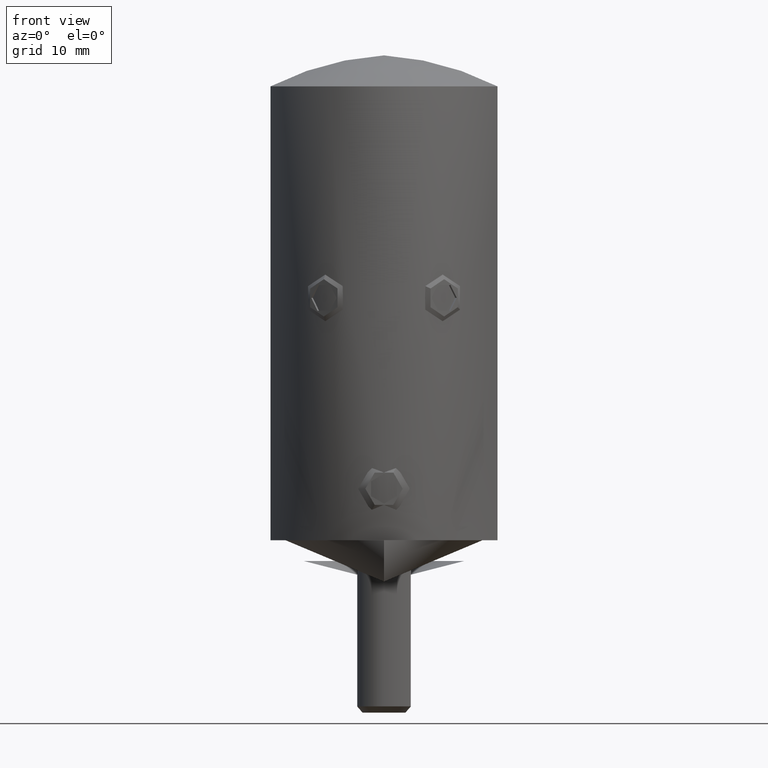
[diagram: clean part render]
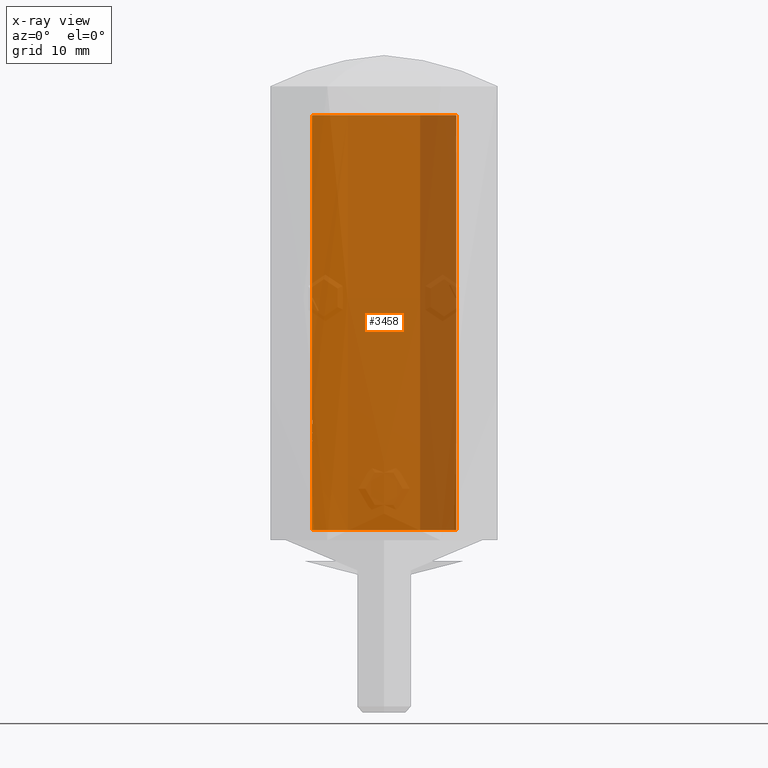
[diagram: x-ray — body ghosted, one internal face saturated and labeled with its STEP entity id]
A machine part, front view, then the same camera in x-ray: the body is ghosted and one INTERNAL B-rep face — a face not visible from any outside direction — is saturated and labeled: STEP entity #3458.
In plain terms, the highlighted cylindrical surface (partial cylindrical patch) has radius 7 mm, axis along (0, 0, 1).
Its self-contained STEP definition (entity closure, byte-faithful):
#54 = VERTEX_POINT ( 'NONE', #9616 ) ;
#90 = CARTESIAN_POINT ( 'NONE',  ( -6.998768601485782170, 0.1337956683988041351, 10.17661903223583231 ) ) ;
#147 = CARTESIAN_POINT ( 'NONE',  ( -6.999471210223982887, 0.08667378625699678762, 10.97935626858159353 ) ) ;
#182 = AXIS2_PLACEMENT_3D ( 'NONE', #3715, #5288, #23142 ) ;
#190 = DIRECTION ( 'NONE',  ( -0.000000000000000000, -0.000000000000000000, 1.000000000000000000 ) ) ;
#216 = CARTESIAN_POINT ( 'NONE',  ( -6.999999999999995559, -1.323292381943502627E-15, 8.579451058748150061 ) ) ;
#237 = CARTESIAN_POINT ( 'NONE',  ( -6.993923164209693510, 0.2916140825320498453, 10.21783246900455744 ) ) ;
#252 = VECTOR ( 'NONE', #2781, 1000.000000000000000 ) ;
#274 = CARTESIAN_POINT ( 'NONE',  ( -6.975926048092667919, 0.5800480769230756950, 9.373201058748145797 ) ) ;
#296 = CARTESIAN_POINT ( 'NONE',  ( -6.975846282831904333, 0.5813469331285497921, 8.040654284271623098 ) ) ;
#297 = CARTESIAN_POINT ( 'NONE',  ( 0.000000000000000000, 0.000000000000000000, 7.897640161312242668 ) ) ;
#320 = VERTEX_POINT ( 'NONE', #17576 ) ;
#321 = CARTESIAN_POINT ( 'NONE',  ( -6.976193689173540768, 0.5773470099078235052, 9.089973908305504224 ) ) ;
#329 = VECTOR ( 'NONE', #20532, 1000.000000000000000 ) ;
#342 = VERTEX_POINT ( 'NONE', #6758 ) ;
#347 = CARTESIAN_POINT ( 'NONE',  ( 6.984900380120135033, 0.5247418004113875156, 18.18558595372106623 ) ) ;
#398 = DIRECTION ( 'NONE',  ( 0.000000000000000000, 0.000000000000000000, 1.000000000000000000 ) ) ;
#409 = VERTEX_POINT ( 'NONE', #14168 ) ;
#426 = CARTESIAN_POINT ( 'NONE',  ( -6.996345098979070976, 0.2611625628301540991, 18.15558766476857855 ) ) ;
#437 = CARTESIAN_POINT ( 'NONE',  ( 4.013610671692792842, 5.737685878056880462, 26.80572358944519706 ) ) ;
#496 = CARTESIAN_POINT ( 'NONE',  ( -6.975072415830049444, 0.5902243589743577656, 9.173173514677630536 ) ) ;
#529 = DIRECTION ( 'NONE',  ( 1.000000000000000000, 0.000000000000000000, 0.000000000000000000 ) ) ;
#578 = CARTESIAN_POINT ( 'NONE',  ( -5.706279725425768667, 4.062977974634681466, 21.61852673299752681 ) ) ;
#592 = ORIENTED_EDGE ( 'NONE', *, *, #17721, .T. ) ;
#608 = CIRCLE ( 'NONE', #13334, 6.999999999999995559 ) ;
#612 = CARTESIAN_POINT ( 'NONE',  ( -6.999999999999995559, -9.826031033049892311E-16, 6.991951058748146153 ) ) ;
#661 = CARTESIAN_POINT ( 'NONE',  ( -6.887608777537050919, 1.270274337741952086, 18.44116813934238763 ) ) ;
#739 = CARTESIAN_POINT ( 'NONE',  ( -4.518504394345542963, 5.350148665132161696, 33.41440822615710005 ) ) ;
#812 = CARTESIAN_POINT ( 'NONE',  ( -6.952498616693251421, 0.8141025641025626536, 47.00000000000000000 ) ) ;
#863 = VERTEX_POINT ( 'NONE', #3545 ) ;
#869 = VERTEX_POINT ( 'NONE', #15858 ) ;
#893 = CARTESIAN_POINT ( 'NONE',  ( -6.975072415830049444, 0.5902243589743574326, 10.86052828230583600 ) ) ;
#900 = B_SPLINE_CURVE_WITH_KNOTS ( 'NONE', 3,
 ( #19061, #8463, #20854, #13751, #8309, #20780 ),
 .UNSPECIFIED., .F., .F.,
 ( 4, 2, 4 ),
 ( 0.000000000000000000, 0.0001305349250431112778, 0.0002610698500862225556 ),
 .UNSPECIFIED. ) ;
#917 = CARTESIAN_POINT ( 'NONE',  ( -6.994055034876375920, 0.2884339943910240733, 11.15405041772250527 ) ) ;
#929 = VERTEX_POINT ( 'NONE', #5349 ) ;
#1028 = VERTEX_POINT ( 'NONE', #20077 ) ;
#1115 = CIRCLE ( 'NONE', #21741, 6.999999999999995559 ) ;
#1126 = CARTESIAN_POINT ( 'NONE',  ( -6.999999999999995559, 8.572527594031467273E-16, 35.39940828047583921 ) ) ;
#1178 = CARTESIAN_POINT ( 'NONE',  ( -6.989828574833163444, 0.3785639965393204354, 8.580741675873525764 ) ) ;
#1355 = CARTESIAN_POINT ( 'NONE',  ( -6.997602991302842135, 0.1831730769230753841, 10.65763865890840023 ) ) ;
#1387 = CARTESIAN_POINT ( 'NONE',  ( -6.999999999999995559, 8.572527594031467273E-16, 47.00000000000000000 ) ) ;
#1402 = LINE ( 'NONE', #13610, #13067 ) ;
#1509 = CARTESIAN_POINT ( 'NONE',  ( 0.000000000000000000, 0.000000000000000000, 9.444435033107119182 ) ) ;
#1515 = CARTESIAN_POINT ( 'NONE',  ( -6.992945226585870699, 0.3141927083333320714, 8.579451058748150061 ) ) ;
#1570 = CARTESIAN_POINT ( 'NONE',  ( -6.994605575281114263, 0.2747596153846138534, 11.08281644336352478 ) ) ;
#1619 = CARTESIAN_POINT ( 'NONE',  ( -6.984020024671357518, 0.4727201021634603317, 7.897640161312242668 ) ) ;
#1722 = CARTESIAN_POINT ( 'NONE',  ( -6.998768601485775065, 0.1337956683989936779, 8.395769673261575861 ) ) ;
#1761 = ORIENTED_EDGE ( 'NONE', *, *, #15612, .T. ) ;
#1845 = EDGE_CURVE ( 'NONE', #14541, #9005, #18646, .T. ) ;
#1880 = CARTESIAN_POINT ( 'NONE',  ( -6.993729378862254542, 0.2962252103365373701, 7.154771571568661948 ) ) ;
#1918 = CARTESIAN_POINT ( 'NONE',  ( -6.999151191932070581, 0.1145966760719420580, 10.61428072925218125 ) ) ;
#1921 = CARTESIAN_POINT ( 'NONE',  ( -6.994055034876375920, 0.2884339943910240733, 11.15405041772250527 ) ) ;
#1922 = CARTESIAN_POINT ( 'NONE',  ( -6.998563910360757312, 0.1432152236574962545, 11.04221978392373771 ) ) ;
#1968 = CARTESIAN_POINT ( 'NONE',  ( 6.542814334116489938, 2.538427064161242530, 35.10867732639272276 ) ) ;
#1989 = CARTESIAN_POINT ( 'NONE',  ( 0.000000000000000000, 0.000000000000000000, 7.592351699773788987 ) ) ;
#2009 = DIRECTION ( 'NONE',  ( 1.000000000000000000, 0.000000000000000000, 0.000000000000000000 ) ) ;
#2046 = CARTESIAN_POINT ( 'NONE',  ( 6.790623764031858300, 1.714520111275324110, 18.69674909945446117 ) ) ;
#2056 = VERTEX_POINT ( 'NONE', #9981 ) ;
#2086 = CARTESIAN_POINT ( 'NONE',  ( 0.000000000000000000, 0.000000000000000000, 7.663585674132768588 ) ) ;
#2109 = ORIENTED_EDGE ( 'NONE', *, *, #2774, .T. ) ;
#2112 = VERTEX_POINT ( 'NONE', #15320 ) ;
#2115 = CARTESIAN_POINT ( 'NONE',  ( -6.975926048092667031, 0.5800480769230759170, 7.663585674132768588 ) ) ;
#2126 = CARTESIAN_POINT ( 'NONE',  ( 3.882634665625848580, 5.826099442373529946, 27.30229014776836749 ) ) ;
#2142 = EDGE_CURVE ( 'NONE', #2112, #8013, #9856, .T. ) ;
#2192 = CARTESIAN_POINT ( 'NONE',  ( -3.484694691419543133, 6.071056112160991169, 31.17524518235789444 ) ) ;
#2207 = CARTESIAN_POINT ( 'NONE',  ( 5.228925469444659413, 4.683467445060103707, 22.95532985235865553 ) ) ;
#2234 = VERTEX_POINT ( 'NONE', #13180 ) ;
#2235 = CARTESIAN_POINT ( 'NONE',  ( -6.975689736892555892, 0.5828830882876727681, 9.234501104868401811 ) ) ;
#2269 = CARTESIAN_POINT ( 'NONE',  ( -3.880748040951491173, 5.827348845917956766, 27.30982509923693513 ) ) ;
#2273 = ORIENTED_EDGE ( 'NONE', *, *, #8750, .T. ) ;
#2279 = CARTESIAN_POINT ( 'NONE',  ( -6.984343760806194901, 0.4688249907980844844, 7.175815290976740535 ) ) ;
#2298 = DIRECTION ( 'NONE',  ( 1.000000000000000000, 0.000000000000000000, 0.000000000000000000 ) ) ;
#2322 = CARTESIAN_POINT ( 'NONE',  ( 0.000000000000000000, 0.000000000000000000, 6.483136956184046618 ) ) ;
#2329 = CARTESIAN_POINT ( 'NONE',  ( -6.983575710892730548, 0.4792392828525628423, 9.373201058748145797 ) ) ;
#2347 = CARTESIAN_POINT ( 'NONE',  ( -6.992613599630831622, 0.3233864536454355010, 11.15310831939025071 ) ) ;
#2351 = CARTESIAN_POINT ( 'NONE',  ( -5.223930507589759742, 4.689160197792338280, 22.96957400297519669 ) ) ;
#2395 = B_SPLINE_CURVE_WITH_KNOTS ( 'NONE', 3,
 ( #21032, #10314, #22819, #12147, #17506, #15851 ),
 .UNSPECIFIED., .F., .F.,
 ( 4, 2, 4 ),
 ( 0.000000000000000000, 0.0001283067629405752329, 0.0002566135258811504658 ),
 .UNSPECIFIED. ) ;
#2396 = CARTESIAN_POINT ( 'NONE',  ( -6.975137246310729289, 0.5894582142183785178, 9.193748656184343560 ) ) ;
#2427 = CARTESIAN_POINT ( 'NONE',  ( -4.293007506824409347, 5.531771002657396075, 25.82387946271992973 ) ) ;
#2502 = CARTESIAN_POINT ( 'NONE',  ( -6.975171153017883263, 0.5890575161885387434, 10.81533190112567766 ) ) ;
#2529 = VERTEX_POINT ( 'NONE', #496 ) ;
#2542 = DIRECTION ( 'NONE',  ( 0.000000000000000000, 0.000000000000000000, -1.000000000000000000 ) ) ;
#2640 = EDGE_CURVE ( 'NONE', #320, #21283, #16739, .T. ) ;
#2641 = DIRECTION ( 'NONE',  ( -0.000000000000000000, -0.000000000000000000, 1.000000000000000000 ) ) ;
#2733 = EDGE_CURVE ( 'NONE', #14004, #19042, #19189, .T. ) ;
#2774 = EDGE_CURVE ( 'NONE', #17678, #22404, #11672, .T. ) ;
#2781 = DIRECTION ( 'NONE',  ( 0.000000000000000000, 0.000000000000000000, -1.000000000000000000 ) ) ;
#2801 = ORIENTED_EDGE ( 'NONE', *, *, #14542, .T. ) ;
#2848 = CARTESIAN_POINT ( 'NONE',  ( -6.979979624355372891, 0.5297830293124800027, 8.630942754712842557 ) ) ;
#2861 = VERTEX_POINT ( 'NONE', #10192 ) ;
#2886 = ORIENTED_EDGE ( 'NONE', *, *, #2733, .F. ) ;
#2919 = CARTESIAN_POINT ( 'NONE',  ( -6.999999999999995559, -1.459002634015275544E-15, 10.43153439208147404 ) ) ;
#2980 = CARTESIAN_POINT ( 'NONE',  ( -6.975072415830049444, 0.5902243589743574326, 10.86052828230583600 ) ) ;
#3025 = CARTESIAN_POINT ( 'NONE',  ( -6.999999999999995559, 8.572527594031467273E-16, 47.00000000000000000 ) ) ;
#3032 = CARTESIAN_POINT ( 'NONE',  ( -6.978068893818809570, 0.5538693984491580569, 10.06555795983422286 ) ) ;
#3120 = DIRECTION ( 'NONE',  ( 0.000000000000000000, 0.000000000000000000, -1.000000000000000000 ) ) ;
#3132 = VERTEX_POINT ( 'NONE', #14002 ) ;
#3174 = CARTESIAN_POINT ( 'NONE',  ( -6.999999999999995559, -1.459002634015275544E-15, 10.36030041772250243 ) ) ;
#3186 = CARTESIAN_POINT ( 'NONE',  ( -6.983836538944188099, 0.4754231770833322601, 7.592351699773788987 ) ) ;
#3259 = CYLINDRICAL_SURFACE ( 'NONE', #20463, 6.999999999999995559 ) ;
#3269 = CARTESIAN_POINT ( 'NONE',  ( -6.981952425540621121, 0.5023348758421917193, 9.355886791321498919 ) ) ;
#3286 = CARTESIAN_POINT ( 'NONE',  ( -6.984343760806194013, 0.4688249907980802100, 6.504180675592125205 ) ) ;
#3306 = CARTESIAN_POINT ( 'NONE',  ( -6.975926048092667919, 0.5800480769230758060, 47.00000000000000000 ) ) ;
#3318 = ORIENTED_EDGE ( 'NONE', *, *, #18002, .T. ) ;
#3326 = ORIENTED_EDGE ( 'NONE', *, *, #21634, .T. ) ;
#3339 = CARTESIAN_POINT ( 'NONE',  ( -6.983575710892730548, 0.4792392828525628423, 9.373201058748145797 ) ) ;
#3362 = ORIENTED_EDGE ( 'NONE', *, *, #13848, .T. ) ;
#3458 = ADVANCED_FACE ( 'NONE', ( #14697 ), #3259, .F. ) ;
#3497 = CIRCLE ( 'NONE', #7293, 6.999999999999995559 ) ;
#3542 = CARTESIAN_POINT ( 'NONE',  ( 6.999999999999996447, 0.2662496403828056857, 18.14600281952405325 ) ) ;
#3545 = CARTESIAN_POINT ( 'NONE',  ( 6.999999999999995559, -8.285570601285806503E-47, 18.14600281952404615 ) ) ;
#3548 = VERTEX_POINT ( 'NONE', #14005 ) ;
#3601 = CARTESIAN_POINT ( 'NONE',  ( -6.975072415830049444, 0.5902243589743575436, 9.913180025094298742 ) ) ;
#3642 = CARTESIAN_POINT ( 'NONE',  ( -6.996612248599139328, 0.2193118914996128599, 11.07776324795959866 ) ) ;
#3669 = VERTEX_POINT ( 'NONE', #8849 ) ;
#3682 = VERTEX_POINT ( 'NONE', #1619 ) ;
#3715 = CARTESIAN_POINT ( 'NONE',  ( 0.000000000000000000, 0.000000000000000000, 41.20360331117451125 ) ) ;
#3740 = CARTESIAN_POINT ( 'NONE',  ( 0.000000000000000000, 0.000000000000000000, 6.920717084389173657 ) ) ;
#3747 = CARTESIAN_POINT ( 'NONE',  ( -6.999961102973563776, 0.05654581292580378865, 10.11587210042866047 ) ) ;
#3769 = CARTESIAN_POINT ( 'NONE',  ( 3.961627299493417631, 5.772529399782638571, 32.62140322171664053 ) ) ;
#3836 = CARTESIAN_POINT ( 'NONE',  ( 4.292967619558781145, 5.531775381972719785, 25.82413911667863715 ) ) ;
#3862 = VECTOR ( 'NONE', #17312, 1000.000000000000000 ) ;
#3889 = EDGE_CURVE ( 'NONE', #2056, #12004, #2395, .T. ) ;
#3901 = CARTESIAN_POINT ( 'NONE',  ( -6.986575440937948578, 0.4346903205438433782, 7.166155968543240107 ) ) ;
#3904 = CARTESIAN_POINT ( 'NONE',  ( 6.942742765577887276, 0.9024243515892252931, 18.29629525992943329 ) ) ;
#3913 = EDGE_CURVE ( 'NONE', #10402, #13131, #7908, .T. ) ;
#3940 = EDGE_CURVE ( 'NONE', #8756, #3548, #21304, .T. ) ;
#3962 = CARTESIAN_POINT ( 'NONE',  ( -6.999999999999995559, -1.075903901604333123E-15, 7.663585674132768588 ) ) ;
#3963 = DIRECTION ( 'NONE',  ( 1.000000000000000000, 0.000000000000000000, 0.000000000000000000 ) ) ;
#3973 = VECTOR ( 'NONE', #5130, 1000.000000000000000 ) ;
#3977 = CARTESIAN_POINT ( 'NONE',  ( -6.542567518516713143, 2.538989121718707054, 35.10851103661691042 ) ) ;
#3988 = CARTESIAN_POINT ( 'NONE',  ( 6.925359298632935534, 1.026631398739719758, 18.34196799502888808 ) ) ;
#4012 = AXIS2_PLACEMENT_3D ( 'NONE', #14516, #5803, #21782 ) ;
#4054 = CARTESIAN_POINT ( 'NONE',  ( -5.711530224472023853, 4.053855320677090646, 34.51780462250131620 ) ) ;
#4064 = CARTESIAN_POINT ( 'NONE',  ( 3.435345811521329118, 6.099454754854335192, 29.86303054383800415 ) ) ;
#4130 = DIRECTION ( 'NONE',  ( 1.000000000000000000, 0.000000000000000000, 0.000000000000000000 ) ) ;
#4135 = CARTESIAN_POINT ( 'NONE',  ( -4.901163497703374894, 5.014311741653757259, 23.90164358058884986 ) ) ;
#4176 = B_SPLINE_CURVE_WITH_KNOTS ( 'NONE', 3,
 ( #16271, #7396, #296, #16343, #5675, #11185 ),
 .UNSPECIFIED., .F., .F.,
 ( 4, 2, 4 ),
 ( 0.000000000000000000, 0.0001369341710318076541, 0.0002738683420636153082 ),
 .UNSPECIFIED. ) ;
#4213 = CARTESIAN_POINT ( 'NONE',  ( -4.441893331862082128, 5.413941733781940435, 25.33830628421084441 ) ) ;
#4215 = CARTESIAN_POINT ( 'NONE',  ( -6.979878195907905258, 0.5310964778666504849, 8.318291551647588378 ) ) ;
#4253 = VERTEX_POINT ( 'NONE', #2980 ) ;
#4275 = CARTESIAN_POINT ( 'NONE',  ( 0.000000000000000000, 0.000000000000000000, 47.00000000000000000 ) ) ;
#4276 = VERTEX_POINT ( 'NONE', #1515 ) ;
#4287 = CIRCLE ( 'NONE', #4012, 6.999999999999995559 ) ;
#4308 = CARTESIAN_POINT ( 'NONE',  ( -5.426532883797307250, 4.428099064734883683, 34.29086989535463914 ) ) ;
#4376 = EDGE_CURVE ( 'NONE', #22644, #13875, #15436, .T. ) ;
#4382 = CARTESIAN_POINT ( 'NONE',  ( -6.977336603706270957, 0.5629660452798612713, 8.883337755563788463 ) ) ;
#4514 = DIRECTION ( 'NONE',  ( 1.000000000000000000, 0.000000000000000000, 0.000000000000000000 ) ) ;
#4532 = VERTEX_POINT ( 'NONE', #16440 ) ;
#4656 = CIRCLE ( 'NONE', #15573, 6.999999999999995559 ) ;
#4735 = EDGE_CURVE ( 'NONE', #10055, #22441, #15958, .T. ) ;
#4738 = EDGE_CURVE ( 'NONE', #20359, #3682, #4176, .T. ) ;
#4739 = CARTESIAN_POINT ( 'NONE',  ( -6.975072415830049444, 0.5902243589743576546, 8.775821501456480433 ) ) ;
#4762 = EDGE_CURVE ( 'NONE', #19126, #22670, #10632, .T. ) ;
#4843 = CARTESIAN_POINT ( 'NONE',  ( -6.989310702890290550, 0.3866987179487162973, 47.00000000000000000 ) ) ;
#4874 = DIRECTION ( 'NONE',  ( 0.000000000000000000, 0.000000000000000000, 1.000000000000000000 ) ) ;
#4888 = CARTESIAN_POINT ( 'NONE',  ( -6.975072415830049444, 0.5902243589743580987, 6.700018967401991432 ) ) ;
#4889 = LINE ( 'NONE', #9921, #17964 ) ;
#4967 = EDGE_CURVE ( 'NONE', #20837, #17843, #14279, .T. ) ;
#5005 = CARTESIAN_POINT ( 'NONE',  ( -6.975677100225962768, 0.5832201906683377457, 9.992922519838865369 ) ) ;
#5012 = ORIENTED_EDGE ( 'NONE', *, *, #3889, .T. ) ;
#5023 = CARTESIAN_POINT ( 'NONE',  ( -6.980354219200949117, 0.5240753519136552852, 9.336853140308246424 ) ) ;
#5068 = DIRECTION ( 'NONE',  ( 1.000000000000000000, 0.000000000000000000, 0.000000000000000000 ) ) ;
#5130 = DIRECTION ( 'NONE',  ( 0.000000000000000000, 0.000000000000000000, -1.000000000000000000 ) ) ;
#5164 = LINE ( 'NONE', #4843, #13528 ) ;
#5181 = EDGE_CURVE ( 'NONE', #2112, #8884, #9257, .T. ) ;
#5233 = CARTESIAN_POINT ( 'NONE',  ( -6.983041713432490916, 0.4870208062510928415, 9.367541357242533451 ) ) ;
#5266 = VECTOR ( 'NONE', #15185, 1000.000000000000000 ) ;
#5288 = DIRECTION ( 'NONE',  ( -0.000000000000000000, -0.000000000000000000, 1.000000000000000000 ) ) ;
#5349 = CARTESIAN_POINT ( 'NONE',  ( -6.999999999999995559, 4.870482010117826478E-12, 10.94703107285666732 ) ) ;
#5469 = EDGE_CURVE ( 'NONE', #13875, #320, #10170, .T. ) ;
#5543 = LINE ( 'NONE', #6225, #5266 ) ;
#5547 = DIRECTION ( 'NONE',  ( -0.000000000000000000, -0.000000000000000000, -1.000000000000000000 ) ) ;
#5552 = LINE ( 'NONE', #3025, #3862 ) ;
#5556 = ORIENTED_EDGE ( 'NONE', *, *, #22536, .F. ) ;
#5565 = CARTESIAN_POINT ( 'NONE',  ( 5.709701804892823418, 4.058132269614905141, 21.60907063363569947 ) ) ;
#5573 = EDGE_CURVE ( 'NONE', #3682, #10402, #6207, .T. ) ;
#5615 = CARTESIAN_POINT ( 'NONE',  ( 6.999999999999995559, 0.000000000000000000, 1.000000000000007772 ) ) ;
#5650 = CARTESIAN_POINT ( 'NONE',  ( 5.710243146143712423, 4.055626741647854416, 34.51680481537748335 ) ) ;
#5659 = VERTEX_POINT ( 'NONE', #9547 ) ;
#5672 = CARTESIAN_POINT ( 'NONE',  ( -6.999572894926469502, 0.08162138506031482721, 10.63715965664230900 ) ) ;
#5675 = CARTESIAN_POINT ( 'NONE',  ( -6.981563341795685496, 0.5090154116276335294, 7.925668110833729685 ) ) ;
#5695 = B_SPLINE_CURVE_WITH_KNOTS ( 'NONE', 3,
 ( #22306, #13494, #20664, #22480, #11781, #17071 ),
 .UNSPECIFIED., .F., .F.,
 ( 4, 2, 4 ),
 ( 3.590984966345653811E-18, 0.0001077436105361430737, 0.0002154872210722825424 ),
 .UNSPECIFIED. ) ;
#5713 = CARTESIAN_POINT ( 'NONE',  ( -6.993729378862254542, 0.2962252103365374811, 6.483136956184046618 ) ) ;
#5720 = CARTESIAN_POINT ( 'NONE',  ( -6.985511624158850630, 0.4501414763621782167, 8.988569398091092566 ) ) ;
#5735 = CARTESIAN_POINT ( 'NONE',  ( 5.426032483548508978, 4.428674355055565393, 34.29044622952272903 ) ) ;
#5759 = VECTOR ( 'NONE', #10967, 1000.000000000000000 ) ;
#5793 = AXIS2_PLACEMENT_3D ( 'NONE', #7489, #398, #2009 ) ;
#5803 = DIRECTION ( 'NONE',  ( 0.000000000000000000, 0.000000000000000000, 1.000000000000000000 ) ) ;
#5804 = CARTESIAN_POINT ( 'NONE',  ( -6.926802405895977621, 1.042810128250600599, 35.35364858841585800 ) ) ;
#5814 = CARTESIAN_POINT ( 'NONE',  ( 6.942084349642493990, 1.039263165607216433, 35.36373935222665921 ) ) ;
#5877 = CARTESIAN_POINT ( 'NONE',  ( -6.987242208407590027, 0.4236922933785357559, 11.12617684318993660 ) ) ;
#5880 = CARTESIAN_POINT ( 'NONE',  ( -6.999999999999995559, 8.578455002255467200E-16, 18.14600281952404615 ) ) ;
#5887 = CARTESIAN_POINT ( 'NONE',  ( 3.624318751276809358, 5.988803700344963232, 31.79586271317699797 ) ) ;
#5894 = CARTESIAN_POINT ( 'NONE',  ( -6.999999999999990230, 0.007907160690843543713, 10.97744594068291768 ) ) ;
#5934 = EDGE_CURVE ( 'NONE', #19126, #9556, #16495, .T. ) ;
#5954 = CARTESIAN_POINT ( 'NONE',  ( -6.979367170375266660, 0.5374862058803320242, 9.740091647447714607 ) ) ;
#5973 = CARTESIAN_POINT ( 'NONE',  ( -4.368455360726575698, 5.472353335685802733, 33.23315077708934240 ) ) ;
#5991 = VERTEX_POINT ( 'NONE', #13524 ) ;
#6016 = CARTESIAN_POINT ( 'NONE',  ( -6.977499106223290504, 0.5608085436698706516, 9.292744828780199029 ) ) ;
#6045 = CARTESIAN_POINT ( 'NONE',  ( -6.982983413948096185, 0.4893754566616164148, 8.966811679149980563 ) ) ;
#6046 = CARTESIAN_POINT ( 'NONE',  ( -6.179827551254266638, 3.302041814314965240, 20.32486935501282588 ) ) ;
#6111 = CARTESIAN_POINT ( 'NONE',  ( -6.975147358123694019, 0.5893387162230315779, 8.798367758529058946 ) ) ;
#6113 = CARTESIAN_POINT ( 'NONE',  ( -5.276140606177035508, 4.605626412470874342, 34.16513715410727059 ) ) ;
#6207 = CIRCLE ( 'NONE', #8127, 6.999999999999995559 ) ;
#6214 = EDGE_CURVE ( 'NONE', #21761, #5659, #12046, .T. ) ;
#6225 = CARTESIAN_POINT ( 'NONE',  ( -6.963660825291711376, 0.7123397435897419472, 47.00000000000000000 ) ) ;
#6243 = ORIENTED_EDGE ( 'NONE', *, *, #17527, .T. ) ;
#6252 = EDGE_CURVE ( 'NONE', #409, #7399, #608, .T. ) ;
#6256 = VECTOR ( 'NONE', #11381, 1000.000000000000000 ) ;
#6261 =( BOUNDED_CURVE ( )  B_SPLINE_CURVE ( 3, ( #6619, #8401, #12144, #15782 ),
 .UNSPECIFIED., .F., .T. ) 
 B_SPLINE_CURVE_WITH_KNOTS ( ( 4, 4 ),
 ( 1.544625757114679976, 1.549374523322837316 ),
 .UNSPECIFIED. ) 
 CURVE ( )  GEOMETRIC_REPRESENTATION_ITEM ( )  RATIONAL_B_SPLINE_CURVE ( ( 1.000000000000000000, 0.9999981207691744922, 0.9999981207691744922, 1.000000000000000000 ) ) 
 REPRESENTATION_ITEM ( '' )  );
#6266 = DIRECTION ( 'NONE',  ( 0.000000000000000000, 0.000000000000000000, -1.000000000000000000 ) ) ;
#6293 = CARTESIAN_POINT ( 'NONE',  ( -6.999777645199416476, 0.05883047230146026124, 11.05835250676353709 ) ) ;
#6313 = EDGE_CURVE ( 'NONE', #12590, #3548, #7295, .T. ) ;
#6351 = EDGE_CURVE ( 'NONE', #19435, #863, #12582, .T. ) ;
#6375 = CARTESIAN_POINT ( 'NONE',  ( -6.983793213084888762, 0.4760591947115369038, 10.62695080834749994 ) ) ;
#6379 = CARTESIAN_POINT ( 'NONE',  ( -6.975926048092667031, 0.5800480769230759170, 7.592351699773788987 ) ) ;
#6405 = CIRCLE ( 'NONE', #9179, 6.999999999999995559 ) ;
#6476 = VERTEX_POINT ( 'NONE', #18391 ) ;
#6486 = ORIENTED_EDGE ( 'NONE', *, *, #5934, .F. ) ;
#6495 = ORIENTED_EDGE ( 'NONE', *, *, #20271, .T. ) ;
#6496 = CARTESIAN_POINT ( 'NONE',  ( -6.979878195907900817, 0.5310964778666517061, 10.09914091062194430 ) ) ;
#6541 = CARTESIAN_POINT ( 'NONE',  ( -6.991496732925233104, 0.3464316386497998668, 8.579608024308434722 ) ) ;
#6619 = CARTESIAN_POINT ( 'NONE',  ( -6.997602991302842135, 0.1831730769230753841, 10.65763865890840023 ) ) ;
#6635 = AXIS2_PLACEMENT_3D ( 'NONE', #2086, #21524, #15045 ) ;
#6690 = LINE ( 'NONE', #22662, #18659 ) ;
#6705 = DIRECTION ( 'NONE',  ( 0.000000000000000000, 0.000000000000000000, 1.000000000000000000 ) ) ;
#6758 = CARTESIAN_POINT ( 'NONE',  ( -6.998393933595229655, 0.1499411558493574381, 10.59435490490199072 ) ) ;
#6797 = CARTESIAN_POINT ( 'NONE',  ( -6.981540128545548285, 0.5091568182339685222, 7.565313627873473834 ) ) ;
#6811 = CARTESIAN_POINT ( 'NONE',  ( -6.996443253277770502, 0.2252596973263223112, 8.432223694027808136 ) ) ;
#6826 = CARTESIAN_POINT ( 'NONE',  ( -6.994605575281114263, 0.2747596153846138534, 11.08281644336352478 ) ) ;
#6844 = CARTESIAN_POINT ( 'NONE',  ( -6.975072415830049444, 0.5902243589743577656, 8.132330666119941043 ) ) ;
#6867 = CIRCLE ( 'NONE', #8057, 6.999999999999995559 ) ;
#6982 = CARTESIAN_POINT ( 'NONE',  ( 0.000000000000000000, 0.000000000000000000, 9.678489520286607473 ) ) ;
#6991 = VERTEX_POINT ( 'NONE', #5720 ) ;
#7062 = CARTESIAN_POINT ( 'NONE',  ( -6.983836538944188099, 0.4754231770833323711, 6.920717084389173657 ) ) ;
#7076 = ORIENTED_EDGE ( 'NONE', *, *, #18141, .T. ) ;
#7124 = CARTESIAN_POINT ( 'NONE',  ( -6.999999999999995559, -9.826031033049892311E-16, 6.483136956184046618 ) ) ;
#7293 = AXIS2_PLACEMENT_3D ( 'NONE', #2322, #14885, #16749 ) ;
#7295 = CIRCLE ( 'NONE', #182, 6.999999999999992895 ) ;
#7333 = CARTESIAN_POINT ( 'NONE',  ( -6.954851611465190153, 0.7937499999999982903, 47.00000000000000000 ) ) ;
#7347 = CARTESIAN_POINT ( 'NONE',  ( -6.975189467077232308, 0.5888410868117479602, 9.867088365795236626 ) ) ;
#7369 = CARTESIAN_POINT ( 'NONE',  ( 6.101068396738040356, 3.440470909134230038, 34.80480834359970288 ) ) ;
#7396 = CARTESIAN_POINT ( 'NONE',  ( -6.975179036695960733, 0.5889643495398574347, 8.086584017283932724 ) ) ;
#7399 = VERTEX_POINT ( 'NONE', #14324 ) ;
#7421 = CARTESIAN_POINT ( 'NONE',  ( -6.975192037068975281, 0.5888107155160734463, 9.131394056443971508 ) ) ;
#7428 = CARTESIAN_POINT ( 'NONE',  ( 0.000000000000000000, 0.000000000000000000, 1.000000000000007772 ) ) ;
#7441 = ORIENTED_EDGE ( 'NONE', *, *, #6351, .T. ) ;
#7488 = B_SPLINE_CURVE_WITH_KNOTS ( 'NONE', 3,
 ( #893, #2502, #11544, #20440, #16770, #7905 ),
 .UNSPECIFIED., .F., .F.,
 ( 4, 2, 4 ),
 ( 0.000000000000000000, 0.0001352648156522893465, 0.0002705296313045786930 ),
 .UNSPECIFIED. ) ;
#7489 = CARTESIAN_POINT ( 'NONE',  ( 0.000000000000000000, 0.000000000000000000, 9.607255545927635865 ) ) ;
#7527 = CARTESIAN_POINT ( 'NONE',  ( 6.180087703133242627, 3.301497064449939955, 20.32417480463006498 ) ) ;
#7554 = CARTESIAN_POINT ( 'NONE',  ( -6.995705180558078773, 0.2467667635599750664, 11.08153758932986044 ) ) ;
#7569 = CARTESIAN_POINT ( 'NONE',  ( -6.999999999999995559, -1.323292381943502627E-15, 9.444435033107119182 ) ) ;
#7606 = CARTESIAN_POINT ( 'NONE',  ( 4.817025510531595778, 5.083044985463340382, 33.73913089254202902 ) ) ;
#7677 = CARTESIAN_POINT ( 'NONE',  ( -3.434903084517150429, 6.099700508052925407, 29.86933745718590671 ) ) ;
#7687 = CARTESIAN_POINT ( 'NONE',  ( 3.526056397548531951, 6.047540902697234877, 31.42026054697447179 ) ) ;
#7747 = LINE ( 'NONE', #11508, #16661 ) ;
#7759 = CARTESIAN_POINT ( 'NONE',  ( -6.975072415830049444, 0.5902243589743579877, 7.371653582786606762 ) ) ;
#7827 = CARTESIAN_POINT ( 'NONE',  ( -6.789526510587169383, 1.719034998935506708, 18.69964344811159762 ) ) ;
#7843 = CARTESIAN_POINT ( 'NONE',  ( -6.996470658696540390, 0.2242866322338582796, 11.14956541639029908 ) ) ;
#7868 = CARTESIAN_POINT ( 'NONE',  ( -6.977139173185732623, 0.5652867786686229801, 9.283373353023065988 ) ) ;
#7896 = CARTESIAN_POINT ( 'NONE',  ( -6.981911184932688030, 0.5042322159321882546, 9.706850409577889138 ) ) ;
#7905 = CARTESIAN_POINT ( 'NONE',  ( -6.983793213084888762, 0.4760591947115369038, 10.62695080834749994 ) ) ;
#7908 = LINE ( 'NONE', #3306, #3973 ) ;
#7912 = CARTESIAN_POINT ( 'NONE',  ( -6.975072415830049444, 0.5902243589743576546, 8.775821501456480433 ) ) ;
#7913 = B_SPLINE_CURVE_WITH_KNOTS ( 'NONE', 3,
 ( #17461, #13947, #15370, #15441, #10033, #6496, #3032, #5005, #13796, #22628 ),
 .UNSPECIFIED., .F., .F.,
 ( 4, 2, 2, 2, 4 ),
 ( 0.000000000000000000, 0.0001179767162651381129, 0.0002359534325302762258, 0.0003539301487954144335, 0.0004719068650605526684 ),
 .UNSPECIFIED. ) ;
#7914 = CARTESIAN_POINT ( 'NONE',  ( -3.653335159690302092, 5.972549048801592875, 28.31917244420478497 ) ) ;
#7915 = CARTESIAN_POINT ( 'NONE',  ( -6.975677100225959215, 0.5832201906683315284, 8.212073160864507670 ) ) ;
#7929 = CARTESIAN_POINT ( 'NONE',  ( -6.998140889070009862, 0.1641044427394380834, 11.13028904072055347 ) ) ;
#8013 = VERTEX_POINT ( 'NONE', #22983 ) ;
#8018 = DIRECTION ( 'NONE',  ( 0.000000000000000000, 0.000000000000000000, -1.000000000000000000 ) ) ;
#8057 = AXIS2_PLACEMENT_3D ( 'NONE', #19122, #4874, #12259 ) ;
#8127 = AXIS2_PLACEMENT_3D ( 'NONE', #297, #18377, #12837 ) ;
#8149 = CARTESIAN_POINT ( 'NONE',  ( -6.999999999999995559, 8.572527594031467273E-16, 47.00000000000000000 ) ) ;
#8229 = CARTESIAN_POINT ( 'NONE',  ( -6.975072415830049444, 0.5902243589743579877, 7.371653582786606762 ) ) ;
#8267 = AXIS2_PLACEMENT_3D ( 'NONE', #1989, #14470, #529 ) ;
#8286 = AXIS2_PLACEMENT_3D ( 'NONE', #14905, #22084, #4130 ) ;
#8309 = CARTESIAN_POINT ( 'NONE',  ( -6.975185519710941584, 0.5888877354552798371, 10.90425387880348751 ) ) ;
#8312 = CARTESIAN_POINT ( 'NONE',  ( -6.984351910703994193, 0.4677909655448703741, 9.678489520286607473 ) ) ;
#8320 = EDGE_CURVE ( 'NONE', #19062, #2861, #20299, .T. ) ;
#8376 = EDGE_CURVE ( 'NONE', #12249, #12590, #16446, .T. ) ;
#8395 = CARTESIAN_POINT ( 'NONE',  ( -6.975926048092667031, 0.5800480769230760281, 6.991951058748146153 ) ) ;
#8401 = CARTESIAN_POINT ( 'NONE',  ( -6.997892940281262852, 0.1720964063075262618, 10.63654528615725425 ) ) ;
#8448 = ORIENTED_EDGE ( 'NONE', *, *, #5181, .F. ) ;
#8463 = CARTESIAN_POINT ( 'NONE',  ( -6.981072906103180209, 0.5155016754099179810, 11.05930241582852425 ) ) ;
#8482 = ORIENTED_EDGE ( 'NONE', *, *, #19487, .T. ) ;
#8655 = VERTEX_POINT ( 'NONE', #2329 ) ;
#8744 = CARTESIAN_POINT ( 'NONE',  ( -6.975926048092667919, 0.5800480769230758060, 7.826406186953270172 ) ) ;
#8748 = EDGE_CURVE ( 'NONE', #20837, #23047, #5552, .T. ) ;
#8750 = EDGE_CURVE ( 'NONE', #11880, #11421, #20063, .T. ) ;
#8753 = ORIENTED_EDGE ( 'NONE', *, *, #4735, .T. ) ;
#8756 = VERTEX_POINT ( 'NONE', #1126 ) ;
#8829 = DIRECTION ( 'NONE',  ( 0.000000000000000000, 0.000000000000000000, -1.000000000000000000 ) ) ;
#8849 = CARTESIAN_POINT ( 'NONE',  ( -6.977499106223290504, 0.5608085436698706516, 9.292744828780199029 ) ) ;
#8884 = VERTEX_POINT ( 'NONE', #3174 ) ;
#8972 = VECTOR ( 'NONE', #19225, 1000.000000000000000 ) ;
#9005 = VERTEX_POINT ( 'NONE', #7124 ) ;
#9017 = EDGE_CURVE ( 'NONE', #2529, #6991, #13741, .T. ) ;
#9114 = CARTESIAN_POINT ( 'NONE',  ( -6.975952100803841205, 0.5801291302065471056, 9.820812857349761060 ) ) ;
#9135 = CARTESIAN_POINT ( 'NONE',  ( 5.845936545844312882, 3.858095587234257717, 34.61900392706368024 ) ) ;
#9179 = AXIS2_PLACEMENT_3D ( 'NONE', #12859, #18174, #3963 ) ;
#9191 = CARTESIAN_POINT ( 'NONE',  ( -6.985511624158850630, 0.4501414763621782167, 8.988569398091092566 ) ) ;
#9243 = CARTESIAN_POINT ( 'NONE',  ( -6.999727933340092356, 0.06171950459328415933, 10.89935331033587040 ) ) ;
#9257 = LINE ( 'NONE', #17429, #8972 ) ;
#9286 = CARTESIAN_POINT ( 'NONE',  ( -6.992255263739551197, 0.3310283326966336759, 7.154873887702688506 ) ) ;
#9288 = CARTESIAN_POINT ( 'NONE',  ( 4.441602385855962787, 5.414197472320702254, 25.33921187414433973 ) ) ;
#9322 = CARTESIAN_POINT ( 'NONE',  ( -6.976463014850424749, 0.5735536613291414287, 9.264309520169659251 ) ) ;
#9356 = CARTESIAN_POINT ( 'NONE',  ( -6.990894963507832571, 0.3584082136639134553, 11.14860221236025772 ) ) ;
#9360 = CARTESIAN_POINT ( 'NONE',  ( -6.999999999999995559, 0.1306505375063912178, 18.14600281952403549 ) ) ;
#9370 = CARTESIAN_POINT ( 'NONE',  ( 6.999999999999995559, 5.785308663664595328E-25, 35.39940828047583921 ) ) ;
#9429 = CARTESIAN_POINT ( 'NONE',  ( -6.985203488364877700, 0.5243822651877466656, 35.39021587486207210 ) ) ;
#9440 = CARTESIAN_POINT ( 'NONE',  ( -6.980184269215653714, 0.5271453394497169764, 7.213241253745144022 ) ) ;
#9441 = CARTESIAN_POINT ( 'NONE',  ( 6.733088442309405508, 1.925479749359578996, 18.84866262095677669 ) ) ;
#9547 = CARTESIAN_POINT ( 'NONE',  ( -6.999999999999995559, 8.578455002255467200E-16, 18.14600281952404615 ) ) ;
#9556 = VERTEX_POINT ( 'NONE', #18939 ) ;
#9563 = B_SPLINE_CURVE_WITH_KNOTS ( 'NONE', 3,
 ( #14177, #17545, #19196, #1722, #17473, #6811, #10353, #10281 ),
 .UNSPECIFIED., .F., .F.,
 ( 4, 2, 2, 4 ),
 ( 8.124888564081127651E-05, 0.0002770453866936352979, 0.0003749436372200456958, 0.0004728418877464559853 ),
 .UNSPECIFIED. ) ;
#9593 = CARTESIAN_POINT ( 'NONE',  ( -6.985511624158850630, 0.4501414763621782167, 8.988569398091092566 ) ) ;
#9595 = CARTESIAN_POINT ( 'NONE',  ( -6.992269128914476717, 0.3312836199741311383, 8.435865236545163626 ) ) ;
#9601 = CARTESIAN_POINT ( 'NONE',  ( -6.975181206930629152, 0.5889387024385170921, 7.336785889655494053 ) ) ;
#9616 = CARTESIAN_POINT ( 'NONE',  ( -6.999999999999995559, -1.427902367915494180E-15, 9.607255545927635865 ) ) ;
#9666 = CARTESIAN_POINT ( 'NONE',  ( -3.660275210844438742, 5.967266975380714378, 31.93059915410081118 ) ) ;
#9667 = CARTESIAN_POINT ( 'NONE',  ( -6.990270887320199300, 0.3707298341137551523, 8.429776795918025201 ) ) ;
#9709 = B_SPLINE_CURVE_WITH_KNOTS ( 'NONE', 3,
 ( #10946, #1918, #5672, #19950, #11021, #17989 ),
 .UNSPECIFIED., .F., .F.,
 ( 4, 2, 4 ),
 ( 0.000000000000000000, 0.0001201119859128009189, 0.0002402239718256018379 ),
 .UNSPECIFIED. ) ;
#9769 = DIRECTION ( 'NONE',  ( -1.000000000000000000, 0.000000000000000000, 0.000000000000000000 ) ) ;
#9834 = CIRCLE ( 'NONE', #20026, 6.999999999999995559 ) ;
#9836 = ORIENTED_EDGE ( 'NONE', *, *, #11111, .T. ) ;
#9856 = B_SPLINE_CURVE_WITH_KNOTS ( 'NONE', 3,
 ( #22427, #19667, #3747, #90, #19584, #10662, #19742, #237 ),
 .UNSPECIFIED., .F., .F.,
 ( 4, 2, 2, 4 ),
 ( 8.124888564028219940E-05, 0.0002770453866933673915, 0.0003749436372199116884, 0.0004728418877464559311 ),
 .UNSPECIFIED. ) ;
#9887 = EDGE_CURVE ( 'NONE', #4276, #19042, #1115, .T. ) ;
#9921 = CARTESIAN_POINT ( 'NONE',  ( -6.975926048092667031, 0.5800480769230760281, 47.00000000000000000 ) ) ;
#9953 = EDGE_CURVE ( 'NONE', #12432, #10067, #21999, .T. ) ;
#9981 = CARTESIAN_POINT ( 'NONE',  ( -6.999733706235544695, 0.06105769230769075850, 10.87118157757827319 ) ) ;
#9984 = CARTESIAN_POINT ( 'NONE',  ( -6.979136293074542863, 0.5404259276506254706, 6.862791982570438876 ) ) ;
#9985 = LINE ( 'NONE', #18603, #252 ) ;
#10000 = ORIENTED_EDGE ( 'NONE', *, *, #6313, .T. ) ;
#10033 = CARTESIAN_POINT ( 'NONE',  ( -6.983852485567704882, 0.4759911326303185586, 10.15589237802040401 ) ) ;
#10055 = VERTEX_POINT ( 'NONE', #6379 ) ;
#10067 = VERTEX_POINT ( 'NONE', #13451 ) ;
#10114 = VECTOR ( 'NONE', #190, 1000.000000000000000 ) ;
#10170 = B_SPLINE_CURVE_WITH_KNOTS ( 'NONE', 3,
 ( #11970, #15545, #9984, #22580, #11811, #4888 ),
 .UNSPECIFIED., .F., .F.,
 ( 4, 2, 4 ),
 ( 0.000000000000000000, 0.0001296520078280028517, 0.0002593040156560057034 ),
 .UNSPECIFIED. ) ;
#10192 = CARTESIAN_POINT ( 'NONE',  ( -6.983378714962022116, 0.4821013621794855708, 11.08726856676096517 ) ) ;
#10201 = ORIENTED_EDGE ( 'NONE', *, *, #10413, .T. ) ;
#10281 = CARTESIAN_POINT ( 'NONE',  ( -6.993923164209693510, 0.2916140825320500674, 8.436983110030192634 ) ) ;
#10314 = CARTESIAN_POINT ( 'NONE',  ( -6.999726386330048733, 0.06189685584760124676, 10.82791465569631306 ) ) ;
#10353 = CARTESIAN_POINT ( 'NONE',  ( -6.995301349506841682, 0.2585603905065792518, 8.436090699637544432 ) ) ;
#10402 = VERTEX_POINT ( 'NONE', #13123 ) ;
#10413 = EDGE_CURVE ( 'NONE', #10532, #21242, #13583, .T. ) ;
#10424 = CARTESIAN_POINT ( 'NONE',  ( -6.982494056543462335, 0.4948067465485812000, 9.361878734747255848 ) ) ;
#10439 = CARTESIAN_POINT ( 'NONE',  ( -6.990523480903465980, 0.3657506385901144186, 6.484430950699305640 ) ) ;
#10504 = ORIENTED_EDGE ( 'NONE', *, *, #14755, .T. ) ;
#10532 = VERTEX_POINT ( 'NONE', #8229 ) ;
#10620 = ORIENTED_EDGE ( 'NONE', *, *, #12049, .T. ) ;
#10632 = CIRCLE ( 'NONE', #11187, 6.999999999999995559 ) ;
#10662 = CARTESIAN_POINT ( 'NONE',  ( -6.996443253277772278, 0.2252596973262431801, 10.21307305300214452 ) ) ;
#10670 = CARTESIAN_POINT ( 'NONE',  ( -6.986575440937945913, 0.4346903205438399920, 6.494521353158617671 ) ) ;
#10802 = CARTESIAN_POINT ( 'NONE',  ( 6.999999999999995559, 0.000000000000000000, 47.00000000000000000 ) ) ;
#10896 = ORIENTED_EDGE ( 'NONE', *, *, #4762, .T. ) ;
#10946 = CARTESIAN_POINT ( 'NONE',  ( -6.998393933595229655, 0.1499411558493574381, 10.59435490490199072 ) ) ;
#10953 = ORIENTED_EDGE ( 'NONE', *, *, #13713, .T. ) ;
#10967 = DIRECTION ( 'NONE',  ( -0.000000000000000000, -0.000000000000000000, 1.000000000000000000 ) ) ;
#10969 = ORIENTED_EDGE ( 'NONE', *, *, #13364, .T. ) ;
#10976 = CARTESIAN_POINT ( 'NONE',  ( -6.975072415830049444, 0.5902243589743577656, 9.173173514677630536 ) ) ;
#11001 = CARTESIAN_POINT ( 'NONE',  ( 4.971859574890522104, 4.932639416082039929, 33.88973780614934128 ) ) ;
#11006 = CIRCLE ( 'NONE', #18351, 6.999999999999995559 ) ;
#11021 = CARTESIAN_POINT ( 'NONE',  ( -6.999999999999995559, 0.01016127060035064769, 10.73689740541943394 ) ) ;
#11048 = DIRECTION ( 'NONE',  ( 0.000000000000000000, 0.000000000000000000, -1.000000000000000000 ) ) ;
#11061 = DIRECTION ( 'NONE',  ( -0.000000000000000000, -0.000000000000000000, 1.000000000000000000 ) ) ;
#11073 = CARTESIAN_POINT ( 'NONE',  ( 5.868898919732982833, 3.827452462793921040, 21.17095840076654056 ) ) ;
#11111 = EDGE_CURVE ( 'NONE', #929, #19062, #18650, .T. ) ;
#11150 = CARTESIAN_POINT ( 'NONE',  ( -3.556265491926552169, 6.029749682938665423, 28.83210282961966087 ) ) ;
#11160 = CARTESIAN_POINT ( 'NONE',  ( 4.366881052130635155, 5.473652110209593857, 33.23132422307671874 ) ) ;
#11185 = CARTESIAN_POINT ( 'NONE',  ( -6.984020024671357518, 0.4727201021634603317, 7.897640161312242668 ) ) ;
#11187 = AXIS2_PLACEMENT_3D ( 'NONE', #13145, #2542, #9769 ) ;
#11194 = CARTESIAN_POINT ( 'NONE',  ( -6.975281495568090406, 0.5877687418166043232, 9.214503821117455473 ) ) ;
#11203 = B_SPLINE_CURVE_WITH_KNOTS ( 'NONE', 3,
 ( #3339, #5233, #10424, #3269, #22926, #12260, #5023, #21222, #14033, #21080 ),
 .UNSPECIFIED., .F., .F.,
 ( 4, 3, 3, 4 ),
 ( 0.000000000000000000, 2.891064384268262155E-05, 5.786952075068253635E-05, 0.0001156858324613522804 ),
 .UNSPECIFIED. ) ;
#11214 = ORIENTED_EDGE ( 'NONE', *, *, #11285, .T. ) ;
#11219 = VERTEX_POINT ( 'NONE', #11734 ) ;
#11230 = CARTESIAN_POINT ( 'NONE',  ( -7.000000000000000888, 6.893059998219234141E-12, 8.215235400432879587 ) ) ;
#11285 = EDGE_CURVE ( 'NONE', #2861, #4253, #900, .T. ) ;
#11294 = EDGE_CURVE ( 'NONE', #22313, #2234, #6690, .T. ) ;
#11306 = ORIENTED_EDGE ( 'NONE', *, *, #12216, .T. ) ;
#11330 = DIRECTION ( 'NONE',  ( 0.000000000000000000, 0.000000000000000000, 1.000000000000000000 ) ) ;
#11354 = VECTOR ( 'NONE', #19908, 1000.000000000000000 ) ;
#11381 = DIRECTION ( 'NONE',  ( 0.000000000000000000, 0.000000000000000000, -1.000000000000000000 ) ) ;
#11382 = CARTESIAN_POINT ( 'NONE',  ( -6.981737660562122194, 0.5219098268101723948, 18.19391284331916836 ) ) ;
#11395 = CARTESIAN_POINT ( 'NONE',  ( -6.978300797048319737, 0.5509750586898728431, 7.240221439189792996 ) ) ;
#11421 = VERTEX_POINT ( 'NONE', #6826 ) ;
#11460 = VECTOR ( 'NONE', #14651, 1000.000000000000000 ) ;
#11468 = B_SPLINE_CURVE_WITH_KNOTS ( 'NONE', 3,
 ( #3186, #6797, #12540, #15887, #17534, #17606 ),
 .UNSPECIFIED., .F., .F.,
 ( 4, 2, 4 ),
 ( 0.000000000000000000, 0.0001296520078280039901, 0.0002593040156560079803 ),
 .UNSPECIFIED. ) ;
#11476 = ORIENTED_EDGE ( 'NONE', *, *, #2640, .T. ) ;
#11508 = CARTESIAN_POINT ( 'NONE',  ( -6.984330604154168398, 0.4681089743589727514, 47.00000000000000000 ) ) ;
#11544 = CARTESIAN_POINT ( 'NONE',  ( -6.975827656779286734, 0.5815601468941486996, 10.76995332633628344 ) ) ;
#11547 = EDGE_CURVE ( 'NONE', #12749, #8655, #6405, .T. ) ;
#11626 = CARTESIAN_POINT ( 'NONE',  ( -6.999999999999995559, -1.180513887576324874E-15, 7.826406186953270172 ) ) ;
#11672 = B_SPLINE_CURVE_WITH_KNOTS ( 'NONE', 3,
 ( #17942, #7347, #9114, #5954, #7896, #13105 ),
 .UNSPECIFIED., .F., .F.,
 ( 4, 2, 4 ),
 ( 0.000000000000000000, 0.0001370123827340154286, 0.0002740247654680308571 ),
 .UNSPECIFIED. ) ;
#11699 = VECTOR ( 'NONE', #11061, 1000.000000000000000 ) ;
#11705 = VECTOR ( 'NONE', #14334, 1000.000000000000000 ) ;
#11734 = CARTESIAN_POINT ( 'NONE',  ( -6.975926048092667919, 0.5800480769230756950, 9.444435033107119182 ) ) ;
#11781 = CARTESIAN_POINT ( 'NONE',  ( -6.993195266980171354, 0.3106620906838052920, 10.56491529341944080 ) ) ;
#11811 = CARTESIAN_POINT ( 'NONE',  ( -6.975191266297922965, 0.5888198242284298223, 6.743497213156798509 ) ) ;
#11829 = CARTESIAN_POINT ( 'NONE',  ( -6.978167886303016765, 0.5526364405363831667, 8.654924363644353136 ) ) ;
#11880 = VERTEX_POINT ( 'NONE', #22236 ) ;
#11903 = CARTESIAN_POINT ( 'NONE',  ( -6.983836538944188099, 0.4754231770833322601, 7.592351699773788987 ) ) ;
#11970 = CARTESIAN_POINT ( 'NONE',  ( -6.983836538944188099, 0.4754231770833323711, 6.920717084389173657 ) ) ;
#11976 = CARTESIAN_POINT ( 'NONE',  ( -6.984330604154168398, 0.4681089743589727514, 11.25581323823532642 ) ) ;
#12000 = DIRECTION ( 'NONE',  ( -0.000000000000000000, -0.000000000000000000, 1.000000000000000000 ) ) ;
#12004 = VERTEX_POINT ( 'NONE', #1355 ) ;
#12013 = EDGE_CURVE ( 'NONE', #8013, #17678, #7913, .T. ) ;
#12046 = LINE ( 'NONE', #17311, #22902 ) ;
#12047 = DIRECTION ( 'NONE',  ( -0.000000000000000000, -0.000000000000000000, 1.000000000000000000 ) ) ;
#12049 = EDGE_CURVE ( 'NONE', #22441, #10532, #11468, .T. ) ;
#12063 = CARTESIAN_POINT ( 'NONE',  ( -6.975175102049227860, 0.5890108478679526582, 8.743644615324125624 ) ) ;
#12080 = ORIENTED_EDGE ( 'NONE', *, *, #4967, .T. ) ;
#12112 = DIRECTION ( 'NONE',  ( 0.000000000000000000, 0.000000000000000000, 1.000000000000000000 ) ) ;
#12144 = CARTESIAN_POINT ( 'NONE',  ( -6.998156588207514517, 0.1610190784660975594, 10.61545066184678276 ) ) ;
#12147 = CARTESIAN_POINT ( 'NONE',  ( -6.999121683082490719, 0.1127869882874223129, 10.70974662197026817 ) ) ;
#12216 = EDGE_CURVE ( 'NONE', #11421, #2056, #15067, .T. ) ;
#12249 = VERTEX_POINT ( 'NONE', #14323 ) ;
#12259 = DIRECTION ( 'NONE',  ( 1.000000000000000000, 0.000000000000000000, 0.000000000000000000 ) ) ;
#12260 = CARTESIAN_POINT ( 'NONE',  ( -6.980876353886601215, 0.5171208461490290897, 9.343517660451603035 ) ) ;
#12261 = B_SPLINE_CURVE_WITH_KNOTS ( 'NONE', 3,
 ( #5880, #9360, #426, #11382, #18344, #14984, #661, #7827, #18503, #13037, #12961, #20062, #6046, #14913, #578, #2351, #4135, #4213, #2427, #18571, #2269, #7914, #11150, #7677, #16779, #2192, #14835, #9666, #16625, #21950, #20145, #5973, #739, #20220, #14756, #6113, #4308, #4054, #22174, #20370, #14678, #3977, #22093, #20300, #5804, #9429, #18422, #16461 ),
 .UNSPECIFIED., .F., .F.,
 ( 4, 2, 2, 2, 2, 2, 2, 2, 2, 2, 2, 2, 2, 2, 2, 2, 2, 2, 2, 2, 2, 2, 2, 4 ),
 ( 0.02501198260958564443, 0.02540389757927323522, 0.02579581254896082254, 0.02657964248833600066, 0.02736347242771117530, 0.02814730236708635341, 0.02971496224583669576, 0.03128262212458703811, 0.03441794188208773669, 0.03598560176083808598, 0.03755326163958844221, 0.03912092151833879150, 0.04068858139708914079, 0.04147241133646432931, 0.04225624127583950396, 0.04304007121521469248, 0.04382390115458986712, 0.04460773109396504871, 0.04539156103334023029, 0.04617539097271541881, 0.04695922091209059346, 0.04852688079084095663, 0.04931071073021614515, 0.05009454066959132673 ),
 .UNSPECIFIED. ) ;
#12345 = EDGE_CURVE ( 'NONE', #10067, #16759, #7747, .T. ) ;
#12355 = ORIENTED_EDGE ( 'NONE', *, *, #4376, .T. ) ;
#12426 = CARTESIAN_POINT ( 'NONE',  ( -6.980184269215652826, 0.5271453394497155331, 6.541606638360527803 ) ) ;
#12432 = VERTEX_POINT ( 'NONE', #20558 ) ;
#12540 = CARTESIAN_POINT ( 'NONE',  ( -6.979136293074540198, 0.5404259276506232501, 7.534426597955055982 ) ) ;
#12582 = LINE ( 'NONE', #10802, #11460 ) ;
#12590 = VERTEX_POINT ( 'NONE', #19235 ) ;
#12651 = ORIENTED_EDGE ( 'NONE', *, *, #9017, .T. ) ;
#12745 = EDGE_CURVE ( 'NONE', #863, #12249, #17927, .T. ) ;
#12749 = VERTEX_POINT ( 'NONE', #274 ) ;
#12789 = CARTESIAN_POINT ( 'NONE',  ( -6.982978908578841626, 0.4894453731455014056, 9.002724178589890158 ) ) ;
#12799 = CARTESIAN_POINT ( 'NONE',  ( 6.999999999999995559, 0.000000000000000000, 47.00000000000000000 ) ) ;
#12817 = CARTESIAN_POINT ( 'NONE',  ( 6.608984960318542434, 2.315873492105659626, 19.17747366942804277 ) ) ;
#12818 = DIRECTION ( 'NONE',  ( -0.000000000000000000, -0.000000000000000000, 1.000000000000000000 ) ) ;
#12837 = DIRECTION ( 'NONE',  ( -1.000000000000000000, 0.000000000000000000, 0.000000000000000000 ) ) ;
#12859 = CARTESIAN_POINT ( 'NONE',  ( 0.000000000000000000, 0.000000000000000000, 9.373201058748145797 ) ) ;
#12887 = CARTESIAN_POINT ( 'NONE',  ( 6.885841473423814030, 1.264816447915066089, 18.44589955542613424 ) ) ;
#12923 = CARTESIAN_POINT ( 'NONE',  ( -6.976151579454841212, 0.5773418291420115978, 9.254613284230501336 ) ) ;
#12957 = CARTESIAN_POINT ( 'NONE',  ( -6.994055034876375920, 0.2884339943910240733, 11.15405041772250527 ) ) ;
#12961 = CARTESIAN_POINT ( 'NONE',  ( -6.541017278780392630, 2.499782308254876906, 19.35808235366782171 ) ) ;
#13002 = CARTESIAN_POINT ( 'NONE',  ( -6.976773795614335860, 0.5697734561777616502, 9.273985374793010550 ) ) ;
#13037 = CARTESIAN_POINT ( 'NONE',  ( -6.608797852428336839, 2.316393363424544827, 19.17797060263219677 ) ) ;
#13055 = CARTESIAN_POINT ( 'NONE',  ( -6.999991798199296511, 0.02151585107006506389, 11.00710531649934154 ) ) ;
#13067 = VECTOR ( 'NONE', #15413, 1000.000000000000000 ) ;
#13080 = CARTESIAN_POINT ( 'NONE',  ( -6.975896234160246401, 0.5804118193490612754, 9.244616162331578124 ) ) ;
#13105 = CARTESIAN_POINT ( 'NONE',  ( -6.984351910703994193, 0.4677909655448703741, 9.678489520286607473 ) ) ;
#13117 = CARTESIAN_POINT ( 'NONE',  ( -6.983852485567709323, 0.4759911326303145063, 8.375043019046046311 ) ) ;
#13123 = CARTESIAN_POINT ( 'NONE',  ( -6.975926048092667919, 0.5800480769230758060, 7.897640161312242668 ) ) ;
#13131 = VERTEX_POINT ( 'NONE', #8744 ) ;
#13145 = CARTESIAN_POINT ( 'NONE',  ( 0.000000000000000000, 0.000000000000000000, 6.991951058748146153 ) ) ;
#13168 = B_SPLINE_CURVE_WITH_KNOTS ( 'NONE', 3,
 ( #9593, #6045, #22091, #4382, #13347, #16778, #6111, #7912 ),
 .UNSPECIFIED., .F., .F.,
 ( 4, 2, 2, 4 ),
 ( 0.000000000000000000, 0.0001335179647753666546, 0.0002002769471630499413, 0.0002670359295507332550 ),
 .UNSPECIFIED. ) ;
#13180 = CARTESIAN_POINT ( 'NONE',  ( -6.999999999999998224, -6.291163838674924654E-14, 10.77627289863280247 ) ) ;
#13334 = AXIS2_PLACEMENT_3D ( 'NONE', #14386, #14234, #16029 ) ;
#13347 = CARTESIAN_POINT ( 'NONE',  ( -6.976491602072680820, 0.5732468379295075911, 8.862970908761349520 ) ) ;
#13350 = CARTESIAN_POINT ( 'NONE',  ( -6.975168945471280857, 0.5890836042297979969, 8.172165273363226845 ) ) ;
#13364 = EDGE_CURVE ( 'NONE', #17843, #10055, #18610, .T. ) ;
#13369 = CARTESIAN_POINT ( 'NONE',  ( -6.998746131322572950, 0.1350120444622721627, 11.11606558863978478 ) ) ;
#13451 = CARTESIAN_POINT ( 'NONE',  ( -6.984330604154168398, 0.4681089743589727514, 11.57127798182507483 ) ) ;
#13472 = VERTEX_POINT ( 'NONE', #18954 ) ;
#13494 = CARTESIAN_POINT ( 'NONE',  ( -6.985770201188604034, 0.4470567591857396161, 10.60570382132353373 ) ) ;
#13524 = CARTESIAN_POINT ( 'NONE',  ( -6.963660825291711376, 0.7123397435897419472, 11.25581323823532642 ) ) ;
#13528 = VECTOR ( 'NONE', #12000, 1000.000000000000000 ) ;
#13576 = ORIENTED_EDGE ( 'NONE', *, *, #21859, .T. ) ;
#13583 = B_SPLINE_CURVE_WITH_KNOTS ( 'NONE', 3,
 ( #7759, #9601, #20072, #11395, #9440, #2279, #3901, #14770, #9286, #18199 ),
 .UNSPECIFIED., .F., .F.,
 ( 4, 2, 2, 2, 4 ),
 ( 0.000000000000000000, 0.0001037594472690270660, 0.0002075188945380541320, 0.0003112783418070812929, 0.0004150377890761084267 ),
 .UNSPECIFIED. ) ;
#13609 = CARTESIAN_POINT ( 'NONE',  ( -6.992945226585870699, 0.3141927083333320714, 8.579451058748150061 ) ) ;
#13610 = CARTESIAN_POINT ( 'NONE',  ( -6.975926048092667919, 0.5800480769230756950, 47.00000000000000000 ) ) ;
#13624 = ORIENTED_EDGE ( 'NONE', *, *, #3940, .F. ) ;
#13693 = ORIENTED_EDGE ( 'NONE', *, *, #22956, .T. ) ;
#13713 = EDGE_CURVE ( 'NONE', #869, #4276, #22855, .T. ) ;
#13741 = B_SPLINE_CURVE_WITH_KNOTS ( 'NONE', 3,
 ( #10976, #7421, #321, #16372, #12789, #9191 ),
 .UNSPECIFIED., .F., .F.,
 ( 4, 2, 4 ),
 ( 0.000000000000000000, 0.0001240503331287726206, 0.0002481006662575452413 ),
 .UNSPECIFIED. ) ;
#13750 = ORIENTED_EDGE ( 'NONE', *, *, #6214, .F. ) ;
#13751 = CARTESIAN_POINT ( 'NONE',  ( -6.975782502722522871, 0.5820651234905025451, 10.94805426285962646 ) ) ;
#13796 = CARTESIAN_POINT ( 'NONE',  ( -6.975168945471279969, 0.5890836042297981079, 9.953014632337584544 ) ) ;
#13830 = DIRECTION ( 'NONE',  ( -0.000000000000000000, -0.000000000000000000, 1.000000000000000000 ) ) ;
#13848 = EDGE_CURVE ( 'NONE', #12004, #342, #6261, .T. ) ;
#13875 = VERTEX_POINT ( 'NONE', #7062 ) ;
#13947 = CARTESIAN_POINT ( 'NONE',  ( -6.992269128914475829, 0.3312836199741313603, 10.21671459551953376 ) ) ;
#13982 = EDGE_CURVE ( 'NONE', #5659, #8756, #12261, .T. ) ;
#14002 = CARTESIAN_POINT ( 'NONE',  ( -6.952498616693251421, 0.8141025641025626536, 10.36030041772250243 ) ) ;
#14004 = VERTEX_POINT ( 'NONE', #11230 ) ;
#14005 = CARTESIAN_POINT ( 'NONE',  ( -6.999999999999992895, 8.572527594031466287E-16, 41.20360331117451125 ) ) ;
#14027 = ORIENTED_EDGE ( 'NONE', *, *, #9953, .T. ) ;
#14033 = CARTESIAN_POINT ( 'NONE',  ( -6.978367668599759988, 0.5500020157131870757, 9.308539353741736022 ) ) ;
#14045 = CARTESIAN_POINT ( 'NONE',  ( -6.975711601572109899, 0.5828406137837857104, 6.630071499706493121 ) ) ;
#14105 = DIRECTION ( 'NONE',  ( 1.000000000000000000, 0.000000000000000000, 0.000000000000000000 ) ) ;
#14113 = CIRCLE ( 'NONE', #8286, 6.999999999999995559 ) ;
#14120 = CARTESIAN_POINT ( 'NONE',  ( -6.992255263739550308, 0.3310283326966327877, 6.483239272318072288 ) ) ;
#14168 = CARTESIAN_POINT ( 'NONE',  ( -6.989310702890290550, 0.3866987179487162973, 11.57127798182506773 ) ) ;
#14177 = CARTESIAN_POINT ( 'NONE',  ( -7.000000000000000888, 6.893059998219234141E-12, 8.215235400432879587 ) ) ;
#14234 = DIRECTION ( 'NONE',  ( 0.000000000000000000, 0.000000000000000000, 1.000000000000000000 ) ) ;
#14279 = CIRCLE ( 'NONE', #6635, 6.999999999999995559 ) ;
#14312 = ORIENTED_EDGE ( 'NONE', *, *, #8376, .T. ) ;
#14323 = CARTESIAN_POINT ( 'NONE',  ( 6.999999999999995559, 5.785308663664595328E-25, 35.39940828047583921 ) ) ;
#14324 = CARTESIAN_POINT ( 'NONE',  ( -6.999999999999995559, -1.631467746023153851E-15, 11.57127798182507483 ) ) ;
#14334 = DIRECTION ( 'NONE',  ( 0.000000000000000000, 0.000000000000000000, -1.000000000000000000 ) ) ;
#14386 = CARTESIAN_POINT ( 'NONE',  ( 0.000000000000000000, 0.000000000000000000, 11.57127798182507483 ) ) ;
#14389 = CARTESIAN_POINT ( 'NONE',  ( 0.000000000000000000, 0.000000000000000000, 11.64251195618404644 ) ) ;
#14406 = AXIS2_PLACEMENT_3D ( 'NONE', #18753, #20392, #22351 ) ;
#14452 = CARTESIAN_POINT ( 'NONE',  ( 6.542392824673783913, 2.496127653088373588, 19.35442427480737138 ) ) ;
#14470 = DIRECTION ( 'NONE',  ( 0.000000000000000000, 0.000000000000000000, 1.000000000000000000 ) ) ;
#14516 = CARTESIAN_POINT ( 'NONE',  ( 0.000000000000000000, 0.000000000000000000, 11.25581323823532642 ) ) ;
#14526 = CARTESIAN_POINT ( 'NONE',  ( 6.333127903549495841, 3.004283523355439023, 19.91280791124865956 ) ) ;
#14541 = VERTEX_POINT ( 'NONE', #17624 ) ;
#14542 = EDGE_CURVE ( 'NONE', #13472, #54, #19138, .T. ) ;
#14577 = VERTEX_POINT ( 'NONE', #7569 ) ;
#14614 = CARTESIAN_POINT ( 'NONE',  ( 3.654720948657843582, 5.971708419421213776, 28.31219511404698252 ) ) ;
#14651 = DIRECTION ( 'NONE',  ( -0.000000000000000000, -0.000000000000000000, 1.000000000000000000 ) ) ;
#14654 = ORIENTED_EDGE ( 'NONE', *, *, #17878, .T. ) ;
#14678 = CARTESIAN_POINT ( 'NONE',  ( -6.220883628476962635, 3.219242264040782064, 34.88860470915785328 ) ) ;
#14688 = CARTESIAN_POINT ( 'NONE',  ( 3.800362523423109096, 5.878893715948835030, 32.28053426644060409 ) ) ;
#14697 = FACE_OUTER_BOUND ( 'NONE', #19996, .T. ) ;
#14725 = EDGE_CURVE ( 'NONE', #14577, #54, #19986, .T. ) ;
#14752 = CARTESIAN_POINT ( 'NONE',  ( -6.985313249679778735, 0.4540790630715468290, 11.10813724894040710 ) ) ;
#14755 = EDGE_CURVE ( 'NONE', #21283, #9005, #3497, .T. ) ;
#14756 = CARTESIAN_POINT ( 'NONE',  ( -4.973163535456652795, 4.931237045306552602, 33.89091733086982572 ) ) ;
#14760 = ORIENTED_EDGE ( 'NONE', *, *, #23093, .T. ) ;
#14770 = CARTESIAN_POINT ( 'NONE',  ( -6.990523480903465092, 0.3657506385901163615, 7.156065566083918306 ) ) ;
#14772 = CARTESIAN_POINT ( 'NONE',  ( -6.999999999999995559, 8.572527594031467273E-16, 47.00000000000000000 ) ) ;
#14793 = DIRECTION ( 'NONE',  ( 0.000000000000000000, 0.000000000000000000, -1.000000000000000000 ) ) ;
#14806 = B_SPLINE_CURVE_WITH_KNOTS ( 'NONE', 3,
 ( #22175, #9595, #9667, #18423, #13117, #4215, #14985, #7915, #13350, #20147 ),
 .UNSPECIFIED., .F., .F.,
 ( 4, 2, 2, 2, 4 ),
 ( 0.000000000000000000, 0.0001179767162651392377, 0.0002359534325302784755, 0.0003539301487954177403, 0.0004719068650605569510 ),
 .UNSPECIFIED. ) ;
#14811 = ORIENTED_EDGE ( 'NONE', *, *, #1845, .F. ) ;
#14833 = ORIENTED_EDGE ( 'NONE', *, *, #18242, .T. ) ;
#14835 = CARTESIAN_POINT ( 'NONE',  ( -3.528566227364640984, 6.046082215260828008, 31.43244393139170256 ) ) ;
#14877 = CARTESIAN_POINT ( 'NONE',  ( -6.975072415830049444, 0.5902243589743577656, 9.173173514677630536 ) ) ;
#14885 = DIRECTION ( 'NONE',  ( 0.000000000000000000, 0.000000000000000000, 1.000000000000000000 ) ) ;
#14905 = CARTESIAN_POINT ( 'NONE',  ( 0.000000000000000000, 0.000000000000000000, 7.154771571568661948 ) ) ;
#14913 = CARTESIAN_POINT ( 'NONE',  ( -5.867910857699770943, 3.829016959065984160, 21.17366045008553144 ) ) ;
#14926 = CARTESIAN_POINT ( 'NONE',  ( -6.995375128963761568, 0.2564238607800690684, 11.15313960371248214 ) ) ;
#14984 = CARTESIAN_POINT ( 'NONE',  ( -6.928540511183176598, 1.029247462520586520, 18.33359182625997263 ) ) ;
#14985 = CARTESIAN_POINT ( 'NONE',  ( -6.978068893818807794, 0.5538693984491575018, 8.284708600859870486 ) ) ;
#15002 = CARTESIAN_POINT ( 'NONE',  ( -6.999555804688602834, 0.08303131880575324864, 11.07994470095280448 ) ) ;
#15045 = DIRECTION ( 'NONE',  ( -1.000000000000000000, 0.000000000000000000, 0.000000000000000000 ) ) ;
#15067 = B_SPLINE_CURVE_WITH_KNOTS ( 'NONE', 3,
 ( #1570, #7554, #3642, #16275, #1922, #16348, #147, #16419, #9243, #16113 ),
 .UNSPECIFIED., .F., .F.,
 ( 4, 2, 2, 2, 4 ),
 ( 0.000000000000000000, 8.293040105297852689E-05, 0.0001658608021059570538, 0.0002487912031589355807, 0.0003317216042119141076 ),
 .UNSPECIFIED. ) ;
#15104 = AXIS2_PLACEMENT_3D ( 'NONE', #22787, #12112, #14105 ) ;
#15185 = DIRECTION ( 'NONE',  ( -0.000000000000000000, -0.000000000000000000, 1.000000000000000000 ) ) ;
#15235 = ORIENTED_EDGE ( 'NONE', *, *, #13982, .F. ) ;
#15320 = CARTESIAN_POINT ( 'NONE',  ( -6.999999999999998224, 6.757504127593325717E-12, 9.996084759406723919 ) ) ;
#15340 = CARTESIAN_POINT ( 'NONE',  ( -6.986094737218521367, 0.4421476310438308688, 8.589816137432267240 ) ) ;
#15370 = CARTESIAN_POINT ( 'NONE',  ( -6.990270887320194859, 0.3707298341137531539, 10.21062615489238823 ) ) ;
#15413 = DIRECTION ( 'NONE',  ( 0.000000000000000000, 0.000000000000000000, -1.000000000000000000 ) ) ;
#15433 = ORIENTED_EDGE ( 'NONE', *, *, #12345, .T. ) ;
#15436 = CIRCLE ( 'NONE', #17796, 6.999999999999995559 ) ;
#15441 = CARTESIAN_POINT ( 'NONE',  ( -6.986032632502581663, 0.4434813926506240289, 10.17933694595663852 ) ) ;
#15545 = CARTESIAN_POINT ( 'NONE',  ( -6.981540128545549173, 0.5091568182339811788, 6.893679012488875379 ) ) ;
#15573 = AXIS2_PLACEMENT_3D ( 'NONE', #7428, #5547, #20058 ) ;
#15612 = EDGE_CURVE ( 'NONE', #17629, #5991, #6867, .T. ) ;
#15615 = EDGE_CURVE ( 'NONE', #14577, #11219, #11006, .T. ) ;
#15626 = CARTESIAN_POINT ( 'NONE',  ( -6.975926048092667031, 0.5800480769230760281, 6.920717084389173657 ) ) ;
#15630 = CARTESIAN_POINT ( 'NONE',  ( -6.975685441276669785, 0.5831352409177227303, 8.711320662982604546 ) ) ;
#15653 = DIRECTION ( 'NONE',  ( -0.000000000000000000, -0.000000000000000000, 1.000000000000000000 ) ) ;
#15680 = ORIENTED_EDGE ( 'NONE', *, *, #8748, .F. ) ;
#15737 = VERTEX_POINT ( 'NONE', #18078 ) ;
#15772 = ORIENTED_EDGE ( 'NONE', *, *, #2142, .T. ) ;
#15782 = CARTESIAN_POINT ( 'NONE',  ( -6.998393933595229655, 0.1499411558493574381, 10.59435490490199072 ) ) ;
#15851 = CARTESIAN_POINT ( 'NONE',  ( -6.997602991302842135, 0.1831730769230753841, 10.65763865890840023 ) ) ;
#15858 = CARTESIAN_POINT ( 'NONE',  ( -6.975072415830049444, 0.5902243589743576546, 8.775821501456480433 ) ) ;
#15887 = CARTESIAN_POINT ( 'NONE',  ( -6.975919415416906411, 0.5804755724375521009, 7.458433197829242189 ) ) ;
#15914 = ORIENTED_EDGE ( 'NONE', *, *, #15615, .T. ) ;
#15953 = ORIENTED_EDGE ( 'NONE', *, *, #5469, .T. ) ;
#15958 = CIRCLE ( 'NONE', #8267, 6.999999999999995559 ) ;
#16002 = ORIENTED_EDGE ( 'NONE', *, *, #9887, .T. ) ;
#16029 = DIRECTION ( 'NONE',  ( 1.000000000000000000, 0.000000000000000000, 0.000000000000000000 ) ) ;
#16054 = DIRECTION ( 'NONE',  ( 0.000000000000000000, 0.000000000000000000, 1.000000000000000000 ) ) ;
#16084 = ORIENTED_EDGE ( 'NONE', *, *, #18343, .T. ) ;
#16097 = EDGE_CURVE ( 'NONE', #1028, #409, #5164, .T. ) ;
#16109 = DIRECTION ( 'NONE',  ( -1.000000000000000000, 0.000000000000000000, 0.000000000000000000 ) ) ;
#16113 = CARTESIAN_POINT ( 'NONE',  ( -6.999733706235544695, 0.06105769230769075850, 10.87118157757827319 ) ) ;
#16238 = ORIENTED_EDGE ( 'NONE', *, *, #17231, .T. ) ;
#16266 = DIRECTION ( 'NONE',  ( 0.000000000000000000, 0.000000000000000000, -1.000000000000000000 ) ) ;
#16271 = CARTESIAN_POINT ( 'NONE',  ( -6.975072415830049444, 0.5902243589743577656, 8.132330666119941043 ) ) ;
#16275 = CARTESIAN_POINT ( 'NONE',  ( -6.998052630925504225, 0.1671527379292243598, 11.05754667737731722 ) ) ;
#16321 = CARTESIAN_POINT ( 'NONE',  ( 3.410882655475179881, 6.113017741456783227, 30.39338502143877463 ) ) ;
#16343 = CARTESIAN_POINT ( 'NONE',  ( -6.979037350977953302, 0.5416948144594655457, 7.959011528766926524 ) ) ;
#16348 = CARTESIAN_POINT ( 'NONE',  ( -6.999273441903922865, 0.1028527741470370849, 11.00278315709723209 ) ) ;
#16370 = DIRECTION ( 'NONE',  ( -1.000000000000000000, 0.000000000000000000, 0.000000000000000000 ) ) ;
#16372 = CARTESIAN_POINT ( 'NONE',  ( -6.980087826432749054, 0.5281873663763382298, 9.022331051603252661 ) ) ;
#16395 = CARTESIAN_POINT ( 'NONE',  ( 5.277473508912483346, 4.604192937339147917, 34.16634287387056190 ) ) ;
#16419 = CARTESIAN_POINT ( 'NONE',  ( -6.999699122789866834, 0.06574008209051651619, 10.92747275215500302 ) ) ;
#16440 = CARTESIAN_POINT ( 'NONE',  ( -6.952498616693251421, 0.8141025641025626536, 9.678489520286607473 ) ) ;
#16446 = LINE ( 'NONE', #12799, #11699 ) ;
#16461 = CARTESIAN_POINT ( 'NONE',  ( -6.999999999999995559, 8.572527594031467273E-16, 35.39940828047583921 ) ) ;
#16469 = CARTESIAN_POINT ( 'NONE',  ( 4.901896686587483565, 5.013668613632527027, 23.89935912472220281 ) ) ;
#16495 = LINE ( 'NONE', #8149, #329 ) ;
#16527 = CARTESIAN_POINT ( 'NONE',  ( 0.000000000000000000, 0.000000000000000000, 10.43153439208147404 ) ) ;
#16546 = ORIENTED_EDGE ( 'NONE', *, *, #14725, .F. ) ;
#16557 = CARTESIAN_POINT ( 'NONE',  ( 3.557238935574166483, 6.029179074010614592, 28.82633588445693107 ) ) ;
#16625 = CARTESIAN_POINT ( 'NONE',  ( -3.749880813445521266, 5.912293763595662277, 32.17513768943251051 ) ) ;
#16642 = ORIENTED_EDGE ( 'NONE', *, *, #12745, .T. ) ;
#16661 = VECTOR ( 'NONE', #14793, 1000.000000000000000 ) ;
#16682 = LINE ( 'NONE', #7333, #11705 ) ;
#16714 = CIRCLE ( 'NONE', #18687, 6.999999999999995559 ) ;
#16739 = B_SPLINE_CURVE_WITH_KNOTS ( 'NONE', 3,
 ( #23021, #22871, #14045, #21391, #12426, #3286, #10670, #10439, #14120, #17784 ),
 .UNSPECIFIED., .F., .F.,
 ( 4, 2, 2, 2, 4 ),
 ( 0.000000000000000000, 0.0001037594472690315248, 0.0002075188945380630496, 0.0003112783418070945744, 0.0004150377890761260992 ),
 .UNSPECIFIED. ) ;
#16749 = DIRECTION ( 'NONE',  ( 1.000000000000000000, 0.000000000000000000, 0.000000000000000000 ) ) ;
#16759 = VERTEX_POINT ( 'NONE', #11976 ) ;
#16766 = AXIS2_PLACEMENT_3D ( 'NONE', #21116, #6705, #5068 ) ;
#16770 = CARTESIAN_POINT ( 'NONE',  ( -6.981395117864715338, 0.5112392759052701852, 10.65549597568318241 ) ) ;
#16778 = CARTESIAN_POINT ( 'NONE',  ( -6.975355233235650765, 0.5869125839159059499, 8.820635022923866586 ) ) ;
#16779 = CARTESIAN_POINT ( 'NONE',  ( -3.410041417149800580, 6.113501056756663665, 30.38963031995412933 ) ) ;
#16948 = LINE ( 'NONE', #1387, #20015 ) ;
#17071 = CARTESIAN_POINT ( 'NONE',  ( -6.994605575281114263, 0.2747596153846139089, 10.56382605874814651 ) ) ;
#17231 = EDGE_CURVE ( 'NONE', #22670, #22644, #4889, .T. ) ;
#17311 = CARTESIAN_POINT ( 'NONE',  ( -6.999999999999995559, 8.572527594031467273E-16, 47.00000000000000000 ) ) ;
#17312 = DIRECTION ( 'NONE',  ( -0.000000000000000000, -0.000000000000000000, 1.000000000000000000 ) ) ;
#17429 = CARTESIAN_POINT ( 'NONE',  ( -6.999999999999995559, 8.572527594031467273E-16, 47.00000000000000000 ) ) ;
#17461 = CARTESIAN_POINT ( 'NONE',  ( -6.993923164209693510, 0.2916140825320498453, 10.21783246900455744 ) ) ;
#17473 = CARTESIAN_POINT ( 'NONE',  ( -6.998163288277097216, 0.1633117209090464150, 8.411757127352583296 ) ) ;
#17506 = CARTESIAN_POINT ( 'NONE',  ( -6.998541121917063457, 0.1473344826133652086, 10.68169097639838050 ) ) ;
#17527 = EDGE_CURVE ( 'NONE', #22404, #4532, #9834, .T. ) ;
#17534 = CARTESIAN_POINT ( 'NONE',  ( -6.975191266297922077, 0.5888198242284298223, 7.415131828541413839 ) ) ;
#17545 = CARTESIAN_POINT ( 'NONE',  ( -6.999999999999980460, 0.01659546550313089827, 8.278626084671980578 ) ) ;
#17576 = CARTESIAN_POINT ( 'NONE',  ( -6.975072415830049444, 0.5902243589743580987, 6.700018967401991432 ) ) ;
#17606 = CARTESIAN_POINT ( 'NONE',  ( -6.975072415830049444, 0.5902243589743579877, 7.371653582786606762 ) ) ;
#17618 = ORIENTED_EDGE ( 'NONE', *, *, #18645, .T. ) ;
#17624 = CARTESIAN_POINT ( 'NONE',  ( -6.999999999999995559, 8.572527594031467273E-16, 1.000000000000007772 ) ) ;
#17629 = VERTEX_POINT ( 'NONE', #19759 ) ;
#17678 = VERTEX_POINT ( 'NONE', #3601 ) ;
#17721 = EDGE_CURVE ( 'NONE', #16759, #1028, #4287, .T. ) ;
#17784 = CARTESIAN_POINT ( 'NONE',  ( -6.993729378862254542, 0.2962252103365374811, 6.483136956184046618 ) ) ;
#17796 = AXIS2_PLACEMENT_3D ( 'NONE', #3740, #16054, #19662 ) ;
#17799 = DIRECTION ( 'NONE',  ( -1.000000000000000000, 0.000000000000000000, 0.000000000000000000 ) ) ;
#17843 = VERTEX_POINT ( 'NONE', #2115 ) ;
#17878 = EDGE_CURVE ( 'NONE', #6991, #869, #13168, .T. ) ;
#17917 = VERTEX_POINT ( 'NONE', #18726 ) ;
#17927 = B_SPLINE_CURVE_WITH_KNOTS ( 'NONE', 3,
 ( #19694, #3542, #347, #3904, #3988, #12887, #18354, #2046, #9441, #12817, #14452, #14526, #7527, #11073, #5565, #2207, #16469, #9288, #3836, #437, #2126, #14614, #16557, #4064, #16321, #21959, #7687, #5887, #20074, #18042, #14688, #3769, #20003, #11160, #21791, #7606, #11001, #16395, #5735, #5650, #9135, #7369, #19853, #1968, #21646, #5814, #18281, #9370 ),
 .UNSPECIFIED., .F., .F.,
 ( 4, 2, 2, 2, 2, 2, 2, 2, 2, 2, 2, 2, 2, 2, 2, 2, 2, 2, 2, 2, 2, 2, 2, 4 ),
 ( 1.723232243623154912E-18, 0.0007856859077583009787, 0.001178528861637452227, 0.001571371815516603258, 0.002357057723274906189, 0.003142743631033209119, 0.004714115446549814112, 0.006285487262066419105, 0.009428230893099619550, 0.01099960270861622021, 0.01257097452413281913, 0.01414234633964942325, 0.01571371815516602044, 0.01649940406292431730, 0.01689224701680345359, 0.01728508997068259681, 0.01807077587844086591, 0.01885646178619914196, 0.01964214769395741800, 0.02042783360171569057, 0.02121351950947396314, 0.02199920541723223918, 0.02357057723274878433, 0.02514194904826532947 ),
 .UNSPECIFIED. ) ;
#17942 = CARTESIAN_POINT ( 'NONE',  ( -6.975072415830049444, 0.5902243589743575436, 9.913180025094298742 ) ) ;
#17951 = LINE ( 'NONE', #812, #6256 ) ;
#17964 = VECTOR ( 'NONE', #8018, 1000.000000000000000 ) ;
#17989 = CARTESIAN_POINT ( 'NONE',  ( -6.999999999999998224, -6.291163838674924654E-14, 10.77627289863280247 ) ) ;
#18002 = EDGE_CURVE ( 'NONE', #4532, #13472, #17951, .T. ) ;
#18042 = CARTESIAN_POINT ( 'NONE',  ( 3.751249955277913717, 5.910229959475050698, 32.16321977831783840 ) ) ;
#18049 = VECTOR ( 'NONE', #6266, 1000.000000000000000 ) ;
#18078 = CARTESIAN_POINT ( 'NONE',  ( -6.952498616693251421, 0.8141025641025626536, 10.43153439208147404 ) ) ;
#18141 = EDGE_CURVE ( 'NONE', #13131, #23047, #21043, .T. ) ;
#18174 = DIRECTION ( 'NONE',  ( 0.000000000000000000, 0.000000000000000000, 1.000000000000000000 ) ) ;
#18176 = CARTESIAN_POINT ( 'NONE',  ( -6.999999999999995559, 8.572527594031467273E-16, 47.00000000000000000 ) ) ;
#18199 = CARTESIAN_POINT ( 'NONE',  ( -6.993729378862254542, 0.2962252103365373701, 7.154771571568661948 ) ) ;
#18242 = EDGE_CURVE ( 'NONE', #14004, #17917, #9563, .T. ) ;
#18281 = CARTESIAN_POINT ( 'NONE',  ( 6.999999999999999112, 0.5218589199780141463, 35.39940828047583921 ) ) ;
#18285 = EDGE_CURVE ( 'NONE', #8655, #3669, #11203, .T. ) ;
#18343 = EDGE_CURVE ( 'NONE', #6476, #17629, #16682, .T. ) ;
#18344 = CARTESIAN_POINT ( 'NONE',  ( -6.970712478516841948, 0.6520533186806239945, 18.22284438351175950 ) ) ;
#18351 = AXIS2_PLACEMENT_3D ( 'NONE', #1509, #3120, #21146 ) ;
#18354 = CARTESIAN_POINT ( 'NONE',  ( 6.863605725836154470, 1.379838403371776323, 18.50442457768950177 ) ) ;
#18377 = DIRECTION ( 'NONE',  ( 0.000000000000000000, 0.000000000000000000, -1.000000000000000000 ) ) ;
#18388 = ORIENTED_EDGE ( 'NONE', *, *, #3913, .T. ) ;
#18391 = CARTESIAN_POINT ( 'NONE',  ( -6.954851611465190153, 0.7937499999999982903, 11.64251195618404644 ) ) ;
#18422 = CARTESIAN_POINT ( 'NONE',  ( -6.999999999999994671, 0.2651199152021050387, 35.39940828047583921 ) ) ;
#18423 = CARTESIAN_POINT ( 'NONE',  ( -6.986032632502583439, 0.4434813926506256387, 8.398487586982289699 ) ) ;
#18503 = CARTESIAN_POINT ( 'NONE',  ( -6.732844811118061656, 1.926314620662785471, 18.84930693117109968 ) ) ;
#18571 = CARTESIAN_POINT ( 'NONE',  ( -4.012265969432349699, 5.738651903542073995, 26.81056856561919943 ) ) ;
#18603 = CARTESIAN_POINT ( 'NONE',  ( -6.952498616693251421, 0.8141025641025626536, 47.00000000000000000 ) ) ;
#18610 = LINE ( 'NONE', #20209, #18049 ) ;
#18645 = EDGE_CURVE ( 'NONE', #22340, #11880, #5695, .T. ) ;
#18646 = LINE ( 'NONE', #14772, #22834 ) ;
#18650 = B_SPLINE_CURVE_WITH_KNOTS ( 'NONE', 3,
 ( #21962, #5894, #13055, #6293, #15002, #13369, #7929, #7843, #14926, #917 ),
 .UNSPECIFIED., .F., .F.,
 ( 4, 2, 2, 2, 4 ),
 ( 8.517740668066315908E-05, 0.0001792308572881891175, 0.0002732843078957151030, 0.0003673377585032410342, 0.0004613912091107669113 ),
 .UNSPECIFIED. ) ;
#18659 = VECTOR ( 'NONE', #12047, 1000.000000000000000 ) ;
#18687 = AXIS2_PLACEMENT_3D ( 'NONE', #16527, #11048, #16370 ) ;
#18726 = CARTESIAN_POINT ( 'NONE',  ( -6.993923164209693510, 0.2916140825320500674, 8.436983110030192634 ) ) ;
#18750 = ORIENTED_EDGE ( 'NONE', *, *, #11547, .T. ) ;
#18753 = CARTESIAN_POINT ( 'NONE',  ( 0.000000000000000000, 0.000000000000000000, 11.57127798182507483 ) ) ;
#18900 = ORIENTED_EDGE ( 'NONE', *, *, #19991, .T. ) ;
#18937 = CIRCLE ( 'NONE', #19001, 6.999999999999995559 ) ;
#18939 = CARTESIAN_POINT ( 'NONE',  ( -6.999999999999995559, -1.075903901604333123E-15, 7.154771571568661948 ) ) ;
#18942 = DIRECTION ( 'NONE',  ( -0.000000000000000000, -0.000000000000000000, 1.000000000000000000 ) ) ;
#18954 = CARTESIAN_POINT ( 'NONE',  ( -6.952498616693251421, 0.8141025641025626536, 9.607255545927635865 ) ) ;
#19001 = AXIS2_PLACEMENT_3D ( 'NONE', #14389, #16266, #16109 ) ;
#19042 = VERTEX_POINT ( 'NONE', #216 ) ;
#19044 = ORIENTED_EDGE ( 'NONE', *, *, #20561, .T. ) ;
#19061 = CARTESIAN_POINT ( 'NONE',  ( -6.983378714962022116, 0.4821013621794855708, 11.08726856676096517 ) ) ;
#19062 = VERTEX_POINT ( 'NONE', #1921 ) ;
#19122 = CARTESIAN_POINT ( 'NONE',  ( 0.000000000000000000, 0.000000000000000000, 11.25581323823532642 ) ) ;
#19126 = VERTEX_POINT ( 'NONE', #612 ) ;
#19138 = CIRCLE ( 'NONE', #5793, 6.999999999999995559 ) ;
#19186 = CIRCLE ( 'NONE', #16766, 6.999999999999995559 ) ;
#19189 = LINE ( 'NONE', #18176, #11354 ) ;
#19196 = CARTESIAN_POINT ( 'NONE',  ( -6.999961102973561999, 0.05654581292603964859, 8.335022741454563899 ) ) ;
#19225 = DIRECTION ( 'NONE',  ( -0.000000000000000000, -0.000000000000000000, 1.000000000000000000 ) ) ;
#19235 = CARTESIAN_POINT ( 'NONE',  ( 6.999999999999992895, 0.000000000000000000, 41.20360331117451125 ) ) ;
#19298 = ORIENTED_EDGE ( 'NONE', *, *, #19964, .T. ) ;
#19346 = ORIENTED_EDGE ( 'NONE', *, *, #11294, .F. ) ;
#19416 = ORIENTED_EDGE ( 'NONE', *, *, #20140, .T. ) ;
#19435 = VERTEX_POINT ( 'NONE', #5615 ) ;
#19487 = EDGE_CURVE ( 'NONE', #22313, #15737, #16714, .T. ) ;
#19516 = ORIENTED_EDGE ( 'NONE', *, *, #23091, .T. ) ;
#19584 = CARTESIAN_POINT ( 'NONE',  ( -6.998163288277100769, 0.1633117209088907895, 10.19260648632688415 ) ) ;
#19662 = DIRECTION ( 'NONE',  ( 1.000000000000000000, 0.000000000000000000, 0.000000000000000000 ) ) ;
#19667 = CARTESIAN_POINT ( 'NONE',  ( -6.999999999999977796, 0.01659546550290000311, 10.05947544364592972 ) ) ;
#19694 = CARTESIAN_POINT ( 'NONE',  ( 6.999999999999995559, -8.285570601285806503E-47, 18.14600281952404615 ) ) ;
#19704 = ORIENTED_EDGE ( 'NONE', *, *, #16097, .T. ) ;
#19742 = CARTESIAN_POINT ( 'NONE',  ( -6.995301349506846122, 0.2585603905065359531, 10.21694005861191101 ) ) ;
#19759 = CARTESIAN_POINT ( 'NONE',  ( -6.954851611465190153, 0.7937499999999982903, 11.25581323823532642 ) ) ;
#19853 = CARTESIAN_POINT ( 'NONE',  ( 6.220913553322474421, 3.219199031558228619, 34.88862638313126752 ) ) ;
#19895 = CARTESIAN_POINT ( 'NONE',  ( -6.999999999999995559, 8.572527594031467273E-16, 47.00000000000000000 ) ) ;
#19908 = DIRECTION ( 'NONE',  ( -0.000000000000000000, -0.000000000000000000, 1.000000000000000000 ) ) ;
#19950 = CARTESIAN_POINT ( 'NONE',  ( -6.999987181472779874, 0.02936360170756342411, 10.69995803342106200 ) ) ;
#19964 = EDGE_CURVE ( 'NONE', #21761, #6476, #18937, .T. ) ;
#19986 = LINE ( 'NONE', #19895, #5759 ) ;
#19991 = EDGE_CURVE ( 'NONE', #342, #2234, #9709, .T. ) ;
#19996 = EDGE_LOOP ( 'NONE', ( #14811, #13693, #7441, #16642, #14312, #10000, #13624, #15235, #13750, #19298, #16084, #1761, #20265, #14027, #15433, #592, #19704, #21803, #5556, #9836, #21699, #11214, #14760, #17618, #2273, #11306, #5012, #3362, #18900, #19346, #8482, #19416, #13576, #8448, #15772, #21574, #2109, #6243, #3318, #2801, #16546, #15914, #6495, #18750, #22041, #3326, #12651, #14654, #10953, #16002, #2886, #14833, #19044, #22280, #22233, #18388, #7076, #15680, #12080, #10969, #8753, #10620, #10201, #19516, #6486, #10896, #16238, #12355, #15953, #11476, #10504 ) ) ;
#20003 = CARTESIAN_POINT ( 'NONE',  ( 4.088412982126996553, 5.684663300023578003, 32.83475115758587748 ) ) ;
#20015 = VECTOR ( 'NONE', #13830, 1000.000000000000000 ) ;
#20026 = AXIS2_PLACEMENT_3D ( 'NONE', #6982, #8829, #17799 ) ;
#20058 = DIRECTION ( 'NONE',  ( -1.000000000000000000, 0.000000000000000000, 0.000000000000000000 ) ) ;
#20062 = CARTESIAN_POINT ( 'NONE',  ( -6.330602272849512602, 3.009775636632020301, 19.91957215237554379 ) ) ;
#20063 = LINE ( 'NONE', #22703, #22307 ) ;
#20072 = CARTESIAN_POINT ( 'NONE',  ( -6.975711601572106346, 0.5828406137837865986, 7.301706115091109339 ) ) ;
#20074 = CARTESIAN_POINT ( 'NONE',  ( 3.663189119944947780, 5.965210798652964996, 31.92095520107509543 ) ) ;
#20077 = CARTESIAN_POINT ( 'NONE',  ( -6.989310702890290550, 0.3866987179487162973, 11.25581323823532642 ) ) ;
#20140 = EDGE_CURVE ( 'NONE', #15737, #3132, #9985, .T. ) ;
#20145 = CARTESIAN_POINT ( 'NONE',  ( -4.092214578090410448, 5.681886404717769068, 32.84057254369331247 ) ) ;
#20147 = CARTESIAN_POINT ( 'NONE',  ( -6.975072415830049444, 0.5902243589743577656, 8.132330666119941043 ) ) ;
#20209 = CARTESIAN_POINT ( 'NONE',  ( -6.975926048092667031, 0.5800480769230759170, 47.00000000000000000 ) ) ;
#20220 = CARTESIAN_POINT ( 'NONE',  ( -4.820113314589685949, 5.080106331096887473, 33.74222099732805447 ) ) ;
#20235 = EDGE_CURVE ( 'NONE', #5991, #12432, #5543, .T. ) ;
#20265 = ORIENTED_EDGE ( 'NONE', *, *, #20235, .T. ) ;
#20271 = EDGE_CURVE ( 'NONE', #11219, #12749, #1402, .T. ) ;
#20299 = B_SPLINE_CURVE_WITH_KNOTS ( 'NONE', 3,
 ( #12957, #2347, #9356, #5877, #14752, #21861 ),
 .UNSPECIFIED., .F., .F.,
 ( 4, 2, 4 ),
 ( 0.000000000000000000, 0.0001048519133931827469, 0.0002097038267863654938 ),
 .UNSPECIFIED. ) ;
#20300 = CARTESIAN_POINT ( 'NONE',  ( -6.882816981881055618, 1.301553470034245263, 35.32603609009689194 ) ) ;
#20359 = VERTEX_POINT ( 'NONE', #6844 ) ;
#20370 = CARTESIAN_POINT ( 'NONE',  ( -6.101490315105780660, 3.439674890988913436, 34.80510070438866421 ) ) ;
#20392 = DIRECTION ( 'NONE',  ( 0.000000000000000000, 0.000000000000000000, 1.000000000000000000 ) ) ;
#20440 = CARTESIAN_POINT ( 'NONE',  ( -6.978973174648977817, 0.5425100267020913636, 10.68923316679517654 ) ) ;
#20463 = AXIS2_PLACEMENT_3D ( 'NONE', #4275, #2641, #4514 ) ;
#20489 = CARTESIAN_POINT ( 'NONE',  ( -6.999999999999995559, -1.631467746023153851E-15, 11.64251195618404644 ) ) ;
#20532 = DIRECTION ( 'NONE',  ( -0.000000000000000000, -0.000000000000000000, 1.000000000000000000 ) ) ;
#20558 = CARTESIAN_POINT ( 'NONE',  ( -6.963660825291711376, 0.7123397435897419472, 11.57127798182506773 ) ) ;
#20561 = EDGE_CURVE ( 'NONE', #17917, #20359, #14806, .T. ) ;
#20655 = B_SPLINE_CURVE_WITH_KNOTS ( 'NONE', 3,
 ( #6016, #7868, #13002, #9322, #12923, #13080, #2235, #11194, #2396, #14877 ),
 .UNSPECIFIED., .F., .F.,
 ( 4, 3, 3, 4 ),
 ( 5.818439421673296370E-18, 3.117817001136932042E-05, 6.245957466926652514E-05, 0.0001246298115723797094 ),
 .UNSPECIFIED. ) ;
#20664 = CARTESIAN_POINT ( 'NONE',  ( -6.987780971491177162, 0.4148260599986943187, 10.58892182568027529 ) ) ;
#20780 = CARTESIAN_POINT ( 'NONE',  ( -6.975072415830049444, 0.5902243589743574326, 10.86052828230583600 ) ) ;
#20837 = VERTEX_POINT ( 'NONE', #3962 ) ;
#20854 = CARTESIAN_POINT ( 'NONE',  ( -6.978757802357534068, 0.5452346919516103396, 11.02643252685582986 ) ) ;
#20943 = CARTESIAN_POINT ( 'NONE',  ( -6.983998366705324479, 0.4738696323051933001, 8.597987151017552065 ) ) ;
#21032 = CARTESIAN_POINT ( 'NONE',  ( -6.999733706235544695, 0.06105769230769075850, 10.87118157757827319 ) ) ;
#21043 = CIRCLE ( 'NONE', #15104, 6.999999999999995559 ) ;
#21080 = CARTESIAN_POINT ( 'NONE',  ( -6.977499106223290504, 0.5608085436698706516, 9.292744828780199029 ) ) ;
#21116 = CARTESIAN_POINT ( 'NONE',  ( 0.000000000000000000, 0.000000000000000000, 10.36030041772250243 ) ) ;
#21146 = DIRECTION ( 'NONE',  ( -1.000000000000000000, 0.000000000000000000, 0.000000000000000000 ) ) ;
#21222 = CARTESIAN_POINT ( 'NONE',  ( -6.979317286819128441, 0.5378866393555037373, 9.323617749257159915 ) ) ;
#21242 = VERTEX_POINT ( 'NONE', #1880 ) ;
#21283 = VERTEX_POINT ( 'NONE', #5713 ) ;
#21304 = LINE ( 'NONE', #23116, #10114 ) ;
#21391 = CARTESIAN_POINT ( 'NONE',  ( -6.978300797048322401, 0.5509750586898716218, 6.568586823805175889 ) ) ;
#21524 = DIRECTION ( 'NONE',  ( 0.000000000000000000, 0.000000000000000000, -1.000000000000000000 ) ) ;
#21574 = ORIENTED_EDGE ( 'NONE', *, *, #12013, .T. ) ;
#21634 = EDGE_CURVE ( 'NONE', #3669, #2529, #20655, .T. ) ;
#21646 = CARTESIAN_POINT ( 'NONE',  ( 6.711094711163092086, 2.057622614265793182, 35.21676991779171573 ) ) ;
#21699 = ORIENTED_EDGE ( 'NONE', *, *, #8320, .T. ) ;
#21741 = AXIS2_PLACEMENT_3D ( 'NONE', #21807, #11330, #2298 ) ;
#21761 = VERTEX_POINT ( 'NONE', #20489 ) ;
#21782 = DIRECTION ( 'NONE',  ( 1.000000000000000000, 0.000000000000000000, 0.000000000000000000 ) ) ;
#21791 = CARTESIAN_POINT ( 'NONE',  ( 4.514843048429426631, 5.353248858534849219, 33.41015681067842280 ) ) ;
#21803 = ORIENTED_EDGE ( 'NONE', *, *, #6252, .T. ) ;
#21807 = CARTESIAN_POINT ( 'NONE',  ( 0.000000000000000000, 0.000000000000000000, 8.579451058748150061 ) ) ;
#21859 = EDGE_CURVE ( 'NONE', #3132, #8884, #19186, .T. ) ;
#21861 = CARTESIAN_POINT ( 'NONE',  ( -6.983378714962022116, 0.4821013621794855708, 11.08726856676096517 ) ) ;
#21950 = CARTESIAN_POINT ( 'NONE',  ( -3.966334479721888240, 5.769316636922289021, 32.62999590851251241 ) ) ;
#21959 = CARTESIAN_POINT ( 'NONE',  ( 3.483562852060016812, 6.071702105253862669, 31.16584623150087907 ) ) ;
#21962 = CARTESIAN_POINT ( 'NONE',  ( -6.999999999999995559, 4.870482010117826478E-12, 10.94703107285666732 ) ) ;
#21999 = CIRCLE ( 'NONE', #14406, 6.999999999999995559 ) ;
#22041 = ORIENTED_EDGE ( 'NONE', *, *, #18285, .T. ) ;
#22084 = DIRECTION ( 'NONE',  ( 0.000000000000000000, 0.000000000000000000, 1.000000000000000000 ) ) ;
#22091 = CARTESIAN_POINT ( 'NONE',  ( -6.980291260872066417, 0.5255105247498704779, 8.938581598909649983 ) ) ;
#22093 = CARTESIAN_POINT ( 'NONE',  ( -6.710118932860252627, 2.059890305959074741, 35.21613648133981656 ) ) ;
#22174 = CARTESIAN_POINT ( 'NONE',  ( -5.847152208194621892, 3.856210377460490335, 34.61990406855962732 ) ) ;
#22175 = CARTESIAN_POINT ( 'NONE',  ( -6.993923164209693510, 0.2916140825320500674, 8.436983110030192634 ) ) ;
#22233 = ORIENTED_EDGE ( 'NONE', *, *, #5573, .T. ) ;
#22236 = CARTESIAN_POINT ( 'NONE',  ( -6.994605575281114263, 0.2747596153846139089, 10.56382605874814651 ) ) ;
#22280 = ORIENTED_EDGE ( 'NONE', *, *, #4738, .T. ) ;
#22306 = CARTESIAN_POINT ( 'NONE',  ( -6.983793213084888762, 0.4760591947115369038, 10.62695080834749994 ) ) ;
#22307 = VECTOR ( 'NONE', #18942, 1000.000000000000000 ) ;
#22313 = VERTEX_POINT ( 'NONE', #2919 ) ;
#22340 = VERTEX_POINT ( 'NONE', #6375 ) ;
#22351 = DIRECTION ( 'NONE',  ( 1.000000000000000000, 0.000000000000000000, 0.000000000000000000 ) ) ;
#22404 = VERTEX_POINT ( 'NONE', #8312 ) ;
#22427 = CARTESIAN_POINT ( 'NONE',  ( -6.999999999999998224, 6.757504127593325717E-12, 9.996084759406723919 ) ) ;
#22441 = VERTEX_POINT ( 'NONE', #11903 ) ;
#22480 = CARTESIAN_POINT ( 'NONE',  ( -6.991491920302552288, 0.3467049090110372878, 10.56864120486384273 ) ) ;
#22536 = EDGE_CURVE ( 'NONE', #929, #7399, #16948, .T. ) ;
#22580 = CARTESIAN_POINT ( 'NONE',  ( -6.975919415416909075, 0.5804755724375509907, 6.786798582444626859 ) ) ;
#22628 = CARTESIAN_POINT ( 'NONE',  ( -6.975072415830049444, 0.5902243589743575436, 9.913180025094298742 ) ) ;
#22644 = VERTEX_POINT ( 'NONE', #15626 ) ;
#22662 = CARTESIAN_POINT ( 'NONE',  ( -6.999999999999995559, 8.572527594031467273E-16, 47.00000000000000000 ) ) ;
#22670 = VERTEX_POINT ( 'NONE', #8395 ) ;
#22703 = CARTESIAN_POINT ( 'NONE',  ( -6.994605575281114263, 0.2747596153846138534, 47.00000000000000000 ) ) ;
#22787 = CARTESIAN_POINT ( 'NONE',  ( 0.000000000000000000, 0.000000000000000000, 7.826406186953270172 ) ) ;
#22819 = CARTESIAN_POINT ( 'NONE',  ( -6.999664716065429282, 0.07154789997684796177, 10.78496159161125689 ) ) ;
#22834 = VECTOR ( 'NONE', #12818, 1000.000000000000000 ) ;
#22855 = B_SPLINE_CURVE_WITH_KNOTS ( 'NONE', 3,
 ( #4739, #12063, #15630, #11829, #2848, #20943, #15340, #1178, #6541, #13609 ),
 .UNSPECIFIED., .F., .F.,
 ( 4, 2, 2, 2, 4 ),
 ( 0.000000000000000000, 9.575658788308790933E-05, 0.0001915131757661758187, 0.0002872697636492637144, 0.0003830263515323516373 ),
 .UNSPECIFIED. ) ;
#22871 = CARTESIAN_POINT ( 'NONE',  ( -6.975181206930628264, 0.5889387024385172031, 6.665151274270874282 ) ) ;
#22902 = VECTOR ( 'NONE', #15653, 1000.000000000000000 ) ;
#22926 = CARTESIAN_POINT ( 'NONE',  ( -6.981410257884983928, 0.5098704640730179483, 9.349888911025095339 ) ) ;
#22956 = EDGE_CURVE ( 'NONE', #14541, #19435, #4656, .T. ) ;
#22983 = CARTESIAN_POINT ( 'NONE',  ( -6.993923164209693510, 0.2916140825320498453, 10.21783246900455744 ) ) ;
#23021 = CARTESIAN_POINT ( 'NONE',  ( -6.975072415830049444, 0.5902243589743580987, 6.700018967401991432 ) ) ;
#23047 = VERTEX_POINT ( 'NONE', #11626 ) ;
#23091 = EDGE_CURVE ( 'NONE', #21242, #9556, #14113, .T. ) ;
#23093 = EDGE_CURVE ( 'NONE', #4253, #22340, #7488, .T. ) ;
#23116 = CARTESIAN_POINT ( 'NONE',  ( -6.999999999999995559, 8.572527594031467273E-16, 47.00000000000000000 ) ) ;
#23142 = DIRECTION ( 'NONE',  ( 1.000000000000000000, 0.000000000000000000, 0.000000000000000000 ) ) ;